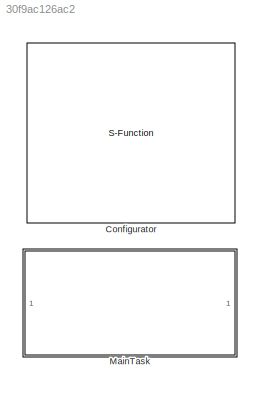
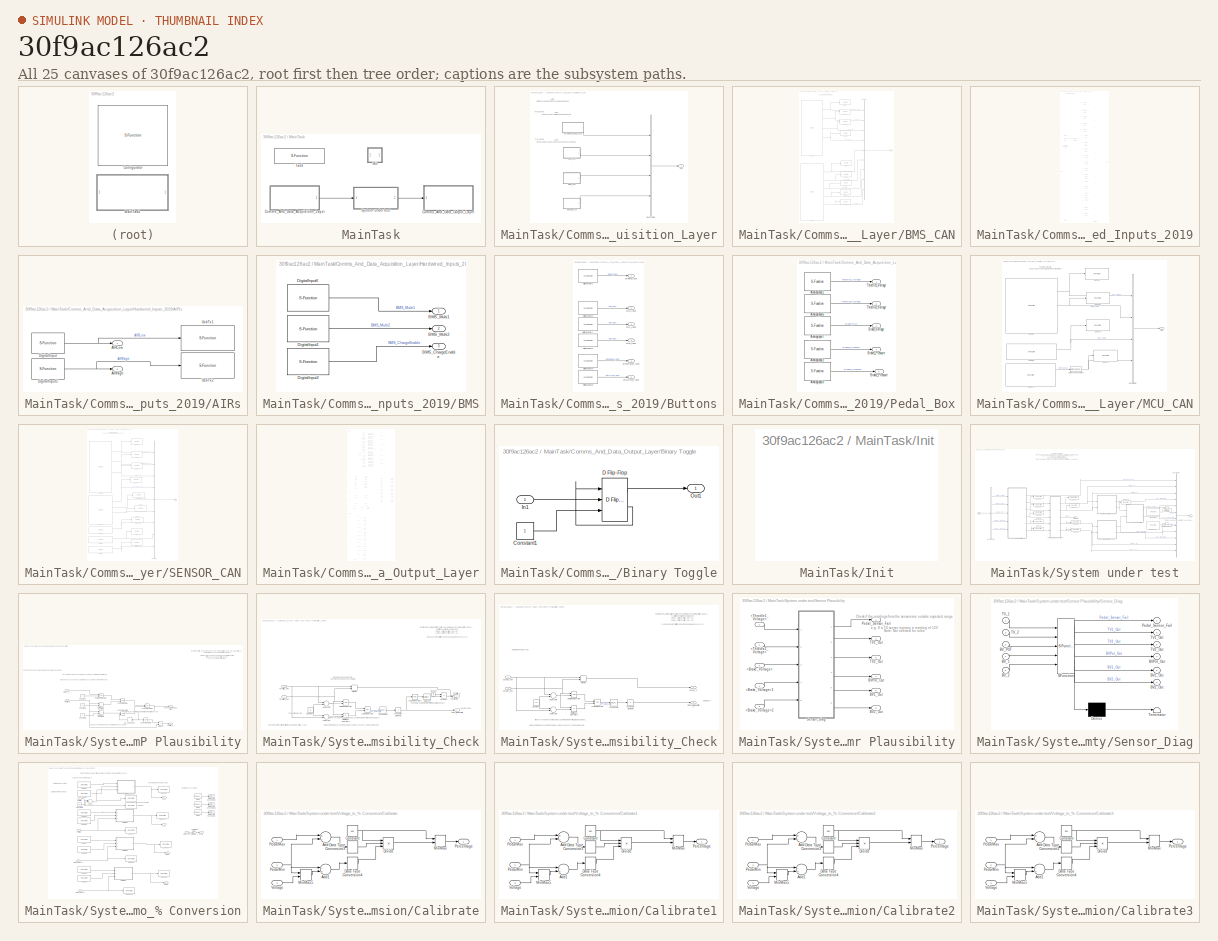
[diagram: thumbnail index - all 25 canvases of the model, root first then tree order]
MODEL slx_30f9ac126ac2
KIND model
CONFIG AbsTol = auto
CONFIG EnableMultiTasking = off
CONFIG FixedStep = 0.0001
CONFIG MaxStep = auto
CONFIG MinStep = auto
CONFIG PostLoadFcn = model_init();
CONFIG RelTol = 1e-3
CONFIG SampleTimeConstraint = Unconstrained
CONFIG Solver = FixedStepDiscrete
CONFIG SolverName = FixedStepDiscrete
CONFIG StartTime = 0.0
CONFIG StopTime = inf
BLOCK [S-Function] Configurator
  EnableBusSupport = off
  FunctionName = NsiSys_Configurator
  OpenFcn = NsiSys_Configurator_OpenFcn();
  Parameters = main,io,nbof_can,can,ccp,flash,nbof_lin,lin,tasks
  Ports = []
  SFcnIsStateOwnerBlock = off
  SFunctionDeploymentMode = off
BLOCK [SubSystem] MainTask
  OpenFcn = NsiSys_SubSystemTask_OpenFcn();
  Ports = []
  RTWFcnName = MainTask
  RTWFcnNameOpts = User specified
  RTWFileName = FileTaskFcn
  RTWFileNameOpts = Use function name
  RTWSystemCode = Nonreusable function
  RequestExecContextInheritance = off
  SystemSampleTime = [0.01]
  TreatAsAtomicUnit = on
  Variant = off
BLOCK [SubSystem] MainTask/Comms_And_Data_Acquisition_Layer
  Ports = [0, 1]
  RequestExecContextInheritance = off
  Variant = off
BLOCK [SubSystem] MainTask/Comms_And_Data_Acquisition_Layer/BMS_CAN
  Ports = [0, 1]
  RequestExecContextInheritance = off
  Variant = off
BLOCK [BusCreator] MainTask/Comms_And_Data_Acquisition_Layer/BMS_CAN/Bus Creator
  DisplayOption = bar
  InheritFromInputs = on
  Inputs = 9
  Ports = [9, 1]
BLOCK [S-Function] MainTask/Comms_And_Data_Acquisition_Layer/BMS_CAN/CanRx6
  EnableBusSupport = off
  FunctionName = NsiCan_Rx_Ext
  OpenFcn = NsiCan_Rx_Ext_OpenFcn();
  Parameters = data_can,channel,msg_name,ident,ident_type,dlc,signals,is_trigger,is_physical,is_canfd,is_rxgw
  Ports = [0, 5]
  SFcnIsStateOwnerBlock = off
  SFunctionDeploymentMode = off
BLOCK [S-Function] MainTask/Comms_And_Data_Acquisition_Layer/BMS_CAN/CanRx7
  EnableBusSupport = off
  FunctionName = NsiCan_Rx_Ext
  OpenFcn = NsiCan_Rx_Ext_OpenFcn();
  Parameters = data_can,channel,msg_name,ident,ident_type,dlc,signals,is_trigger,is_physical,is_canfd,is_rxgw
  Ports = [0, 6]
  SFcnIsStateOwnerBlock = off
  SFunctionDeploymentMode = off
BLOCK [Outport] MainTask/Comms_And_Data_Acquisition_Layer/BMS_CAN/Out1
  IconDisplay = Port number
BLOCK [S-Function] MainTask/Comms_And_Data_Acquisition_Layer/BMS_CAN/UsbTx1
  EnableBusSupport = off
  FunctionName = NsiUsb_Tx
  OpenFcn = NsiUsb_Tx_OpenFcn();
  Parameters = signame,resolution,offset,unite
  Ports = [1]
  SFcnIsStateOwnerBlock = off
  SFunctionDeploymentMode = off
BLOCK [S-Function] MainTask/Comms_And_Data_Acquisition_Layer/BMS_CAN/UsbTx2
  EnableBusSupport = off
  FunctionName = NsiUsb_Tx
  OpenFcn = NsiUsb_Tx_OpenFcn();
  Parameters = signame,resolution,offset,unite
  Ports = [1]
  SFcnIsStateOwnerBlock = off
  SFunctionDeploymentMode = off
BLOCK [S-Function] MainTask/Comms_And_Data_Acquisition_Layer/BMS_CAN/UsbTx3
  EnableBusSupport = off
  FunctionName = NsiUsb_Tx
  OpenFcn = NsiUsb_Tx_OpenFcn();
  Parameters = signame,resolution,offset,unite
  Ports = [1]
  SFcnIsStateOwnerBlock = off
  SFunctionDeploymentMode = off
BLOCK [S-Function] MainTask/Comms_And_Data_Acquisition_Layer/BMS_CAN/UsbTx4
  EnableBusSupport = off
  FunctionName = NsiUsb_Tx
  OpenFcn = NsiUsb_Tx_OpenFcn();
  Parameters = signame,resolution,offset,unite
  Ports = [1]
  SFcnIsStateOwnerBlock = off
  SFunctionDeploymentMode = off
BLOCK [S-Function] MainTask/Comms_And_Data_Acquisition_Layer/BMS_CAN/UsbTx5
  EnableBusSupport = off
  FunctionName = NsiUsb_Tx
  OpenFcn = NsiUsb_Tx_OpenFcn();
  Parameters = signame,resolution,offset,unite
  Ports = [1]
  SFcnIsStateOwnerBlock = off
  SFunctionDeploymentMode = off
BLOCK [S-Function] MainTask/Comms_And_Data_Acquisition_Layer/BMS_CAN/UsbTx6
  EnableBusSupport = off
  FunctionName = NsiUsb_Tx
  OpenFcn = NsiUsb_Tx_OpenFcn();
  Parameters = signame,resolution,offset,unite
  Ports = [1]
  SFcnIsStateOwnerBlock = off
  SFunctionDeploymentMode = off
BLOCK [S-Function] MainTask/Comms_And_Data_Acquisition_Layer/BMS_CAN/UsbTx7
  EnableBusSupport = off
  FunctionName = NsiUsb_Tx
  OpenFcn = NsiUsb_Tx_OpenFcn();
  Parameters = signame,resolution,offset,unite
  Ports = [1]
  SFcnIsStateOwnerBlock = off
  SFunctionDeploymentMode = off
BLOCK [S-Function] MainTask/Comms_And_Data_Acquisition_Layer/BMS_CAN/UsbTx8
  EnableBusSupport = off
  FunctionName = NsiUsb_Tx
  OpenFcn = NsiUsb_Tx_OpenFcn();
  Parameters = signame,resolution,offset,unite
  Ports = [1]
  SFcnIsStateOwnerBlock = off
  SFunctionDeploymentMode = off
BLOCK [S-Function] MainTask/Comms_And_Data_Acquisition_Layer/BMS_CAN/UsbTx9
  EnableBusSupport = off
  FunctionName = NsiUsb_Tx
  OpenFcn = NsiUsb_Tx_OpenFcn();
  Parameters = signame,resolution,offset,unite
  Ports = [1]
  SFcnIsStateOwnerBlock = off
  SFunctionDeploymentMode = off
BLOCK [BusCreator] MainTask/Comms_And_Data_Acquisition_Layer/Bus Creator
  DisplayOption = bar
  InheritFromInputs = on
  Inputs = 4
  Ports = [4, 1]
BLOCK [SubSystem] MainTask/Comms_And_Data_Acquisition_Layer/Hardwired_Inputs_2019
  Ports = [0, 1]
  RequestExecContextInheritance = off
  Variant = off
BLOCK [SubSystem] MainTask/Comms_And_Data_Acquisition_Layer/Hardwired_Inputs_2019/AIRs
  Ports = [0, 2]
  RequestExecContextInheritance = off
  Variant = off
BLOCK [Outport] MainTask/Comms_And_Data_Acquisition_Layer/Hardwired_Inputs_2019/AIRs/AIRHigh
  IconDisplay = Port number
  Port = 2
BLOCK [Outport] MainTask/Comms_And_Data_Acquisition_Layer/Hardwired_Inputs_2019/AIRs/AIRLow
  IconDisplay = Port number
BLOCK [S-Function] MainTask/Comms_And_Data_Acquisition_Layer/Hardwired_Inputs_2019/AIRs/DigitalInput
  EnableBusSupport = off
  FunctionName = NsiIo_DigitalInput
  OpenFcn = NsiIo_DigitalInput_OpenFcn();
  Parameters = channel,is_trigger,typeof_trigger,is_wakeup,wakeup_level
  Ports = [0, 1]
  SFcnIsStateOwnerBlock = off
  SFunctionDeploymentMode = off
BLOCK [S-Function] MainTask/Comms_And_Data_Acquisition_Layer/Hardwired_Inputs_2019/AIRs/DigitalInput5
  EnableBusSupport = off
  FunctionName = NsiIo_DigitalInput
  OpenFcn = NsiIo_DigitalInput_OpenFcn();
  Parameters = channel,is_trigger,typeof_trigger,is_wakeup,wakeup_level
  Ports = [0, 1]
  SFcnIsStateOwnerBlock = off
  SFunctionDeploymentMode = off
BLOCK [S-Function] MainTask/Comms_And_Data_Acquisition_Layer/Hardwired_Inputs_2019/AIRs/UsbTx1
  EnableBusSupport = off
  FunctionName = NsiUsb_Tx
  OpenFcn = NsiUsb_Tx_OpenFcn();
  Parameters = signame,resolution,offset,unite
  Ports = [1]
  SFcnIsStateOwnerBlock = off
  SFunctionDeploymentMode = off
BLOCK [S-Function] MainTask/Comms_And_Data_Acquisition_Layer/Hardwired_Inputs_2019/AIRs/UsbTx2
  EnableBusSupport = off
  FunctionName = NsiUsb_Tx
  OpenFcn = NsiUsb_Tx_OpenFcn();
  Parameters = signame,resolution,offset,unite
  Ports = [1]
  SFcnIsStateOwnerBlock = off
  SFunctionDeploymentMode = off
BLOCK [SubSystem] MainTask/Comms_And_Data_Acquisition_Layer/Hardwired_Inputs_2019/BMS
  Ports = [0, 3]
  RequestExecContextInheritance = off
  Variant = off
BLOCK [Outport] MainTask/Comms_And_Data_Acquisition_Layer/Hardwired_Inputs_2019/BMS/BMS_ChargeEnable
  IconDisplay = Port number
  Port = 3
BLOCK [Outport] MainTask/Comms_And_Data_Acquisition_Layer/Hardwired_Inputs_2019/BMS/BMS_Multi1
  IconDisplay = Port number
BLOCK [Outport] MainTask/Comms_And_Data_Acquisition_Layer/Hardwired_Inputs_2019/BMS/BMS_Multi2
  IconDisplay = Port number
  Port = 2
BLOCK [S-Function] MainTask/Comms_And_Data_Acquisition_Layer/Hardwired_Inputs_2019/BMS/DigitalInput1
  EnableBusSupport = off
  FunctionName = NsiIo_DigitalInput
  OpenFcn = NsiIo_DigitalInput_OpenFcn();
  Parameters = channel,is_trigger,typeof_trigger,is_wakeup,wakeup_level
  Ports = [0, 1]
  SFcnIsStateOwnerBlock = off
  SFunctionDeploymentMode = off
BLOCK [S-Function] MainTask/Comms_And_Data_Acquisition_Layer/Hardwired_Inputs_2019/BMS/DigitalInput2
  EnableBusSupport = off
  FunctionName = NsiIo_DigitalInput
  OpenFcn = NsiIo_DigitalInput_OpenFcn();
  Parameters = channel,is_trigger,typeof_trigger,is_wakeup,wakeup_level
  Ports = [0, 1]
  SFcnIsStateOwnerBlock = off
  SFunctionDeploymentMode = off
BLOCK [S-Function] MainTask/Comms_And_Data_Acquisition_Layer/Hardwired_Inputs_2019/BMS/DigitalInput6
  EnableBusSupport = off
  FunctionName = NsiIo_DigitalInput
  OpenFcn = NsiIo_DigitalInput_OpenFcn();
  Parameters = channel,is_trigger,typeof_trigger,is_wakeup,wakeup_level
  Ports = [0, 1]
  SFcnIsStateOwnerBlock = off
  SFunctionDeploymentMode = off
BLOCK [BusCreator] MainTask/Comms_And_Data_Acquisition_Layer/Hardwired_Inputs_2019/Bus Creator
  DisplayOption = bar
  InheritFromInputs = on
  Inputs = 18
  Ports = [18, 1]
BLOCK [SubSystem] MainTask/Comms_And_Data_Acquisition_Layer/Hardwired_Inputs_2019/Buttons
  Ports = [0, 6]
  RequestExecContextInheritance = off
  Variant = off
BLOCK [S-Function] MainTask/Comms_And_Data_Acquisition_Layer/Hardwired_Inputs_2019/Buttons/DigitalInput1
  EnableBusSupport = off
  FunctionName = NsiIo_DigitalInput
  OpenFcn = NsiIo_DigitalInput_OpenFcn();
  Parameters = channel,is_trigger,typeof_trigger,is_wakeup,wakeup_level
  Ports = [0, 1]
  SFcnIsStateOwnerBlock = off
  SFunctionDeploymentMode = off
BLOCK [S-Function] MainTask/Comms_And_Data_Acquisition_Layer/Hardwired_Inputs_2019/Buttons/DigitalInput2
  EnableBusSupport = off
  FunctionName = NsiIo_DigitalInput
  OpenFcn = NsiIo_DigitalInput_OpenFcn();
  Parameters = channel,is_trigger,typeof_trigger,is_wakeup,wakeup_level
  Ports = [0, 1]
  SFcnIsStateOwnerBlock = off
  SFunctionDeploymentMode = off
BLOCK [S-Function] MainTask/Comms_And_Data_Acquisition_Layer/Hardwired_Inputs_2019/Buttons/DigitalInput3
  EnableBusSupport = off
  FunctionName = NsiIo_DigitalInput
  OpenFcn = NsiIo_DigitalInput_OpenFcn();
  Parameters = channel,is_trigger,typeof_trigger,is_wakeup,wakeup_level
  Ports = [0, 1]
  SFcnIsStateOwnerBlock = off
  SFunctionDeploymentMode = off
BLOCK [S-Function] MainTask/Comms_And_Data_Acquisition_Layer/Hardwired_Inputs_2019/Buttons/DigitalInput4
  EnableBusSupport = off
  FunctionName = NsiIo_DigitalInput
  OpenFcn = NsiIo_DigitalInput_OpenFcn();
  Parameters = channel,is_trigger,typeof_trigger,is_wakeup,wakeup_level
  Ports = [0, 1]
  SFcnIsStateOwnerBlock = off
  SFunctionDeploymentMode = off
BLOCK [S-Function] MainTask/Comms_And_Data_Acquisition_Layer/Hardwired_Inputs_2019/Buttons/DigitalInput5
  EnableBusSupport = off
  FunctionName = NsiIo_DigitalInput
  OpenFcn = NsiIo_DigitalInput_OpenFcn();
  Parameters = channel,is_trigger,typeof_trigger,is_wakeup,wakeup_level
  Ports = [0, 1]
  SFcnIsStateOwnerBlock = off
  SFunctionDeploymentMode = off
BLOCK [S-Function] MainTask/Comms_And_Data_Acquisition_Layer/Hardwired_Inputs_2019/Buttons/DigitalInput6
  EnableBusSupport = off
  FunctionName = NsiIo_DigitalInput
  OpenFcn = NsiIo_DigitalInput_OpenFcn();
  Parameters = channel,is_trigger,typeof_trigger,is_wakeup,wakeup_level
  Ports = [0, 1]
  SFcnIsStateOwnerBlock = off
  SFunctionDeploymentMode = off
BLOCK [Outport] MainTask/Comms_And_Data_Acquisition_Layer/Hardwired_Inputs_2019/Buttons/btnAccyFan_Input
  IconDisplay = Port number
  Port = 6
BLOCK [Outport] MainTask/Comms_And_Data_Acquisition_Layer/Hardwired_Inputs_2019/Buttons/btnPumpFan_Input
  IconDisplay = Port number
  Port = 5
BLOCK [Outport] MainTask/Comms_And_Data_Acquisition_Layer/Hardwired_Inputs_2019/Buttons/btnRTD_Input
  IconDisplay = Port number
BLOCK [Outport] MainTask/Comms_And_Data_Acquisition_Layer/Hardwired_Inputs_2019/Buttons/btnX_Input
  IconDisplay = Port number
  Port = 2
BLOCK [Outport] MainTask/Comms_And_Data_Acquisition_Layer/Hardwired_Inputs_2019/Buttons/btnY_Input
  IconDisplay = Port number
  Port = 3
BLOCK [Outport] MainTask/Comms_And_Data_Acquisition_Layer/Hardwired_Inputs_2019/Buttons/btnZ_Input
  IconDisplay = Port number
  Port = 4
BLOCK [S-Function] MainTask/Comms_And_Data_Acquisition_Layer/Hardwired_Inputs_2019/FrequentialInput1
  EnableBusSupport = off
  FunctionName = NsiIo_FrequencyInput
  OpenFcn = NsiIo_FrequencyInput_OpenFcn();
  Parameters = channel,max_freq,is_digital_input,DutyCycle,MUXlabType
  Ports = [0, 1]
  SFcnIsStateOwnerBlock = off
  SFunctionDeploymentMode = off
BLOCK [Outport] MainTask/Comms_And_Data_Acquisition_Layer/Hardwired_Inputs_2019/Out1
  IconDisplay = Port number
BLOCK [SubSystem] MainTask/Comms_And_Data_Acquisition_Layer/Hardwired_Inputs_2019/Pedal_Box
  Ports = [0, 5]
  RequestExecContextInheritance = off
  Variant = off
BLOCK [S-Function] MainTask/Comms_And_Data_Acquisition_Layer/Hardwired_Inputs_2019/Pedal_Box/AnalogInput1
  EnableBusSupport = off
  FunctionName = NsiIo_AnalogInput
  OpenFcn = NsiIo_AnalogInput_OpenFcn();
  Parameters = channel
  Ports = [0, 1]
  SFcnIsStateOwnerBlock = off
  SFunctionDeploymentMode = off
BLOCK [S-Function] MainTask/Comms_And_Data_Acquisition_Layer/Hardwired_Inputs_2019/Pedal_Box/AnalogInput2
  EnableBusSupport = off
  FunctionName = NsiIo_AnalogInput
  OpenFcn = NsiIo_AnalogInput_OpenFcn();
  Parameters = channel
  Ports = [0, 1]
  SFcnIsStateOwnerBlock = off
  SFunctionDeploymentMode = off
BLOCK [S-Function] MainTask/Comms_And_Data_Acquisition_Layer/Hardwired_Inputs_2019/Pedal_Box/AnalogInput3
  EnableBusSupport = off
  FunctionName = NsiIo_AnalogInput
  OpenFcn = NsiIo_AnalogInput_OpenFcn();
  Parameters = channel
  Ports = [0, 1]
  SFcnIsStateOwnerBlock = off
  SFunctionDeploymentMode = off
BLOCK [S-Function] MainTask/Comms_And_Data_Acquisition_Layer/Hardwired_Inputs_2019/Pedal_Box/AnalogInput6
  EnableBusSupport = off
  FunctionName = NsiIo_AnalogInput
  OpenFcn = NsiIo_AnalogInput_OpenFcn();
  Parameters = channel
  Ports = [0, 1]
  SFcnIsStateOwnerBlock = off
  SFunctionDeploymentMode = off
BLOCK [S-Function] MainTask/Comms_And_Data_Acquisition_Layer/Hardwired_Inputs_2019/Pedal_Box/AnalogInput7
  EnableBusSupport = off
  FunctionName = NsiIo_AnalogInput
  OpenFcn = NsiIo_AnalogInput_OpenFcn();
  Parameters = channel
  Ports = [0, 1]
  SFcnIsStateOwnerBlock = off
  SFunctionDeploymentMode = off
BLOCK [Outport] MainTask/Comms_And_Data_Acquisition_Layer/Hardwired_Inputs_2019/Pedal_Box/Brake1_Pressure
  IconDisplay = Port number
  Port = 4
BLOCK [Outport] MainTask/Comms_And_Data_Acquisition_Layer/Hardwired_Inputs_2019/Pedal_Box/Brake2_Pressure
  IconDisplay = Port number
  Port = 5
BLOCK [Outport] MainTask/Comms_And_Data_Acquisition_Layer/Hardwired_Inputs_2019/Pedal_Box/Brake_Voltage
  IconDisplay = Port number
  Port = 3
BLOCK [Outport] MainTask/Comms_And_Data_Acquisition_Layer/Hardwired_Inputs_2019/Pedal_Box/Throttle1_Voltage
  IconDisplay = Port number
BLOCK [Outport] MainTask/Comms_And_Data_Acquisition_Layer/Hardwired_Inputs_2019/Pedal_Box/Throttle2_Voltage
  IconDisplay = Port number
  Port = 2
BLOCK [S-Function] MainTask/Comms_And_Data_Acquisition_Layer/Hardwired_Inputs_2019/UsbTx1
  EnableBusSupport = off
  FunctionName = NsiUsb_Tx
  OpenFcn = NsiUsb_Tx_OpenFcn();
  Parameters = signame,resolution,offset,unite
  Ports = [1]
  SFcnIsStateOwnerBlock = off
  SFunctionDeploymentMode = off
BLOCK [S-Function] MainTask/Comms_And_Data_Acquisition_Layer/Hardwired_Inputs_2019/UsbTx10
  EnableBusSupport = off
  FunctionName = NsiUsb_Tx
  OpenFcn = NsiUsb_Tx_OpenFcn();
  Parameters = signame,resolution,offset,unite
  Ports = [1]
  SFcnIsStateOwnerBlock = off
  SFunctionDeploymentMode = off
BLOCK [S-Function] MainTask/Comms_And_Data_Acquisition_Layer/Hardwired_Inputs_2019/UsbTx11
  EnableBusSupport = off
  FunctionName = NsiUsb_Tx
  OpenFcn = NsiUsb_Tx_OpenFcn();
  Parameters = signame,resolution,offset,unite
  Ports = [1]
  SFcnIsStateOwnerBlock = off
  SFunctionDeploymentMode = off
BLOCK [S-Function] MainTask/Comms_And_Data_Acquisition_Layer/Hardwired_Inputs_2019/UsbTx12
  EnableBusSupport = off
  FunctionName = NsiUsb_Tx
  OpenFcn = NsiUsb_Tx_OpenFcn();
  Parameters = signame,resolution,offset,unite
  Ports = [1]
  SFcnIsStateOwnerBlock = off
  SFunctionDeploymentMode = off
BLOCK [S-Function] MainTask/Comms_And_Data_Acquisition_Layer/Hardwired_Inputs_2019/UsbTx13
  EnableBusSupport = off
  FunctionName = NsiUsb_Tx
  OpenFcn = NsiUsb_Tx_OpenFcn();
  Parameters = signame,resolution,offset,unite
  Ports = [1]
  SFcnIsStateOwnerBlock = off
  SFunctionDeploymentMode = off
BLOCK [S-Function] MainTask/Comms_And_Data_Acquisition_Layer/Hardwired_Inputs_2019/UsbTx14
  EnableBusSupport = off
  FunctionName = NsiUsb_Tx
  OpenFcn = NsiUsb_Tx_OpenFcn();
  Parameters = signame,resolution,offset,unite
  Ports = [1]
  SFcnIsStateOwnerBlock = off
  SFunctionDeploymentMode = off
BLOCK [S-Function] MainTask/Comms_And_Data_Acquisition_Layer/Hardwired_Inputs_2019/UsbTx15
  EnableBusSupport = off
  FunctionName = NsiUsb_Tx
  OpenFcn = NsiUsb_Tx_OpenFcn();
  Parameters = signame,resolution,offset,unite
  Ports = [1]
  SFcnIsStateOwnerBlock = off
  SFunctionDeploymentMode = off
BLOCK [S-Function] MainTask/Comms_And_Data_Acquisition_Layer/Hardwired_Inputs_2019/UsbTx16
  EnableBusSupport = off
  FunctionName = NsiUsb_Tx
  OpenFcn = NsiUsb_Tx_OpenFcn();
  Parameters = signame,resolution,offset,unite
  Ports = [1]
  SFcnIsStateOwnerBlock = off
  SFunctionDeploymentMode = off
BLOCK [S-Function] MainTask/Comms_And_Data_Acquisition_Layer/Hardwired_Inputs_2019/UsbTx17
  EnableBusSupport = off
  FunctionName = NsiUsb_Tx
  OpenFcn = NsiUsb_Tx_OpenFcn();
  Parameters = signame,resolution,offset,unite
  Ports = [1]
  SFcnIsStateOwnerBlock = off
  SFunctionDeploymentMode = off
BLOCK [S-Function] MainTask/Comms_And_Data_Acquisition_Layer/Hardwired_Inputs_2019/UsbTx18
  EnableBusSupport = off
  FunctionName = NsiUsb_Tx
  OpenFcn = NsiUsb_Tx_OpenFcn();
  Parameters = signame,resolution,offset,unite
  Ports = [1]
  SFcnIsStateOwnerBlock = off
  SFunctionDeploymentMode = off
BLOCK [S-Function] MainTask/Comms_And_Data_Acquisition_Layer/Hardwired_Inputs_2019/UsbTx2
  EnableBusSupport = off
  FunctionName = NsiUsb_Tx
  OpenFcn = NsiUsb_Tx_OpenFcn();
  Parameters = signame,resolution,offset,unite
  Ports = [1]
  SFcnIsStateOwnerBlock = off
  SFunctionDeploymentMode = off
BLOCK [S-Function] MainTask/Comms_And_Data_Acquisition_Layer/Hardwired_Inputs_2019/UsbTx3
  EnableBusSupport = off
  FunctionName = NsiUsb_Tx
  OpenFcn = NsiUsb_Tx_OpenFcn();
  Parameters = signame,resolution,offset,unite
  Ports = [1]
  SFcnIsStateOwnerBlock = off
  SFunctionDeploymentMode = off
BLOCK [S-Function] MainTask/Comms_And_Data_Acquisition_Layer/Hardwired_Inputs_2019/UsbTx4
  EnableBusSupport = off
  FunctionName = NsiUsb_Tx
  OpenFcn = NsiUsb_Tx_OpenFcn();
  Parameters = signame,resolution,offset,unite
  Ports = [1]
  SFcnIsStateOwnerBlock = off
  SFunctionDeploymentMode = off
BLOCK [S-Function] MainTask/Comms_And_Data_Acquisition_Layer/Hardwired_Inputs_2019/UsbTx5
  EnableBusSupport = off
  FunctionName = NsiUsb_Tx
  OpenFcn = NsiUsb_Tx_OpenFcn();
  Parameters = signame,resolution,offset,unite
  Ports = [1]
  SFcnIsStateOwnerBlock = off
  SFunctionDeploymentMode = off
BLOCK [S-Function] MainTask/Comms_And_Data_Acquisition_Layer/Hardwired_Inputs_2019/UsbTx6
  EnableBusSupport = off
  FunctionName = NsiUsb_Tx
  OpenFcn = NsiUsb_Tx_OpenFcn();
  Parameters = signame,resolution,offset,unite
  Ports = [1]
  SFcnIsStateOwnerBlock = off
  SFunctionDeploymentMode = off
BLOCK [S-Function] MainTask/Comms_And_Data_Acquisition_Layer/Hardwired_Inputs_2019/UsbTx7
  EnableBusSupport = off
  FunctionName = NsiUsb_Tx
  OpenFcn = NsiUsb_Tx_OpenFcn();
  Parameters = signame,resolution,offset,unite
  Ports = [1]
  SFcnIsStateOwnerBlock = off
  SFunctionDeploymentMode = off
BLOCK [S-Function] MainTask/Comms_And_Data_Acquisition_Layer/Hardwired_Inputs_2019/UsbTx8
  EnableBusSupport = off
  FunctionName = NsiUsb_Tx
  OpenFcn = NsiUsb_Tx_OpenFcn();
  Parameters = signame,resolution,offset,unite
  Ports = [1]
  SFcnIsStateOwnerBlock = off
  SFunctionDeploymentMode = off
BLOCK [S-Function] MainTask/Comms_And_Data_Acquisition_Layer/Hardwired_Inputs_2019/UsbTx9
  EnableBusSupport = off
  FunctionName = NsiUsb_Tx
  OpenFcn = NsiUsb_Tx_OpenFcn();
  Parameters = signame,resolution,offset,unite
  Ports = [1]
  SFcnIsStateOwnerBlock = off
  SFunctionDeploymentMode = off
BLOCK [S-Function] MainTask/Comms_And_Data_Acquisition_Layer/Hardwired_Inputs_2019/VBat
  EnableBusSupport = off
  FunctionName = NsiIo_Vbat
  OpenFcn = NsiIo_Vbat_OpenFcn();
  Ports = [0, 1]
  SFcnIsStateOwnerBlock = off
  SFunctionDeploymentMode = off
BLOCK [Lookup_n-D] MainTask/Comms_And_Data_Acquisition_Layer/Hardwired_Inputs_2019/Voltage_Act
  BreakpointsForDimension1 = [0,20000]
  ExtrapMethod = Clip
  InternalRulePriority = Speed
  NumberOfTableDimensions = 1
  OutDataTypeStr = uint16
  Ports = [1, 1]
  RndMeth = Simplest
  Table = [500,33000]
  TableDataTypeStr = Inherit: Inherit from 'Table data'
  UseLastTableValue = on
BLOCK [SubSystem] MainTask/Comms_And_Data_Acquisition_Layer/MCU_CAN
  Ports = [0, 1]
  RequestExecContextInheritance = off
  Variant = off
BLOCK [BusCreator] MainTask/Comms_And_Data_Acquisition_Layer/MCU_CAN/Bus Creator
  DisplayOption = bar
  InheritFromInputs = on
  Inputs = 4
  Ports = [4, 1]
BLOCK [S-Function] MainTask/Comms_And_Data_Acquisition_Layer/MCU_CAN/CanRx1
  EnableBusSupport = off
  FunctionName = NsiCan_Rx_J1939_Ext
  OpenFcn = NsiCan_Rx_J1939_Ext_OpenFcn();
  Parameters = data_can,channel,msg_name,ident,ident_type,dlc,signals,is_trigger,is_SA_Masked,is_TA_Masked,is_physical,is_canfd
  Ports = [0, 3]
  SFcnIsStateOwnerBlock = off
  SFunctionDeploymentMode = off
BLOCK [S-Function] MainTask/Comms_And_Data_Acquisition_Layer/MCU_CAN/CanRx2
  EnableBusSupport = off
  FunctionName = NsiCan_Rx_J1939_Ext
  OpenFcn = NsiCan_Rx_J1939_Ext_OpenFcn();
  Parameters = data_can,channel,msg_name,ident,ident_type,dlc,signals,is_trigger,is_SA_Masked,is_TA_Masked,is_physical,is_canfd
  Ports = [0, 2]
  SFcnIsStateOwnerBlock = off
  SFunctionDeploymentMode = off
BLOCK [S-Function] MainTask/Comms_And_Data_Acquisition_Layer/MCU_CAN/CanRx3
  EnableBusSupport = off
  FunctionName = NsiCan_Rx_J1939_Ext
  OpenFcn = NsiCan_Rx_J1939_Ext_OpenFcn();
  Parameters = data_can,channel,msg_name,ident,ident_type,dlc,signals,is_trigger,is_SA_Masked,is_TA_Masked,is_physical,is_canfd
  Ports = [0, 2]
  SFcnIsStateOwnerBlock = off
  SFunctionDeploymentMode = off
BLOCK [DataTypeConversion] MainTask/Comms_And_Data_Acquisition_Layer/MCU_CAN/Data Type Conversion
  OutDataTypeStr = int16
  RndMeth = Floor
  SaturateOnIntegerOverflow = off
BLOCK [Outport] MainTask/Comms_And_Data_Acquisition_Layer/MCU_CAN/Out1
  IconDisplay = Port number
BLOCK [S-Function] MainTask/Comms_And_Data_Acquisition_Layer/MCU_CAN/UsbTx1
  EnableBusSupport = off
  FunctionName = NsiUsb_Tx
  OpenFcn = NsiUsb_Tx_OpenFcn();
  Parameters = signame,resolution,offset,unite
  Ports = [1]
  SFcnIsStateOwnerBlock = off
  SFunctionDeploymentMode = off
BLOCK [S-Function] MainTask/Comms_And_Data_Acquisition_Layer/MCU_CAN/UsbTx2
  EnableBusSupport = off
  FunctionName = NsiUsb_Tx
  OpenFcn = NsiUsb_Tx_OpenFcn();
  Parameters = signame,resolution,offset,unite
  Ports = [1]
  SFcnIsStateOwnerBlock = off
  SFunctionDeploymentMode = off
BLOCK [S-Function] MainTask/Comms_And_Data_Acquisition_Layer/MCU_CAN/UsbTx3
  EnableBusSupport = off
  FunctionName = NsiUsb_Tx
  OpenFcn = NsiUsb_Tx_OpenFcn();
  Parameters = signame,resolution,offset,unite
  Ports = [1]
  SFcnIsStateOwnerBlock = off
  SFunctionDeploymentMode = off
BLOCK [S-Function] MainTask/Comms_And_Data_Acquisition_Layer/MCU_CAN/UsbTx4
  EnableBusSupport = off
  FunctionName = NsiUsb_Tx
  OpenFcn = NsiUsb_Tx_OpenFcn();
  Parameters = signame,resolution,offset,unite
  Ports = [1]
  SFcnIsStateOwnerBlock = off
  SFunctionDeploymentMode = off
BLOCK [Outport] MainTask/Comms_And_Data_Acquisition_Layer/Out1
  IconDisplay = Port number
BLOCK [SubSystem] MainTask/Comms_And_Data_Acquisition_Layer/SENSOR_CAN
  Ports = [0, 1]
  RequestExecContextInheritance = off
  Variant = off
BLOCK [BusCreator] MainTask/Comms_And_Data_Acquisition_Layer/SENSOR_CAN/Bus Creator
  DisplayOption = bar
  InheritFromInputs = on
  Inputs = 9
  Ports = [9, 1]
BLOCK [S-Function] MainTask/Comms_And_Data_Acquisition_Layer/SENSOR_CAN/CanRx1
  EnableBusSupport = off
  FunctionName = NsiCan_Rx_Ext
  OpenFcn = NsiCan_Rx_Ext_OpenFcn();
  Parameters = data_can,channel,msg_name,ident,ident_type,dlc,signals,is_trigger,is_physical,is_canfd,is_rxgw
  Ports = [0, 4]
  SFcnIsStateOwnerBlock = off
  SFunctionDeploymentMode = off
BLOCK [S-Function] MainTask/Comms_And_Data_Acquisition_Layer/SENSOR_CAN/CanRx2
  EnableBusSupport = off
  FunctionName = NsiCan_Rx_Ext
  OpenFcn = NsiCan_Rx_Ext_OpenFcn();
  Parameters = data_can,channel,msg_name,ident,ident_type,dlc,signals,is_trigger,is_physical,is_canfd,is_rxgw
  Ports = [0, 4]
  SFcnIsStateOwnerBlock = off
  SFunctionDeploymentMode = off
BLOCK [S-Function] MainTask/Comms_And_Data_Acquisition_Layer/SENSOR_CAN/CanRx5
  EnableBusSupport = off
  FunctionName = NsiCan_Rx_Ext
  OpenFcn = NsiCan_Rx_Ext_OpenFcn();
  Parameters = data_can,channel,msg_name,ident,ident_type,dlc,signals,is_trigger,is_physical,is_canfd,is_rxgw
  Ports = [0, 2]
  SFcnIsStateOwnerBlock = off
  SFunctionDeploymentMode = off
BLOCK [S-Function] MainTask/Comms_And_Data_Acquisition_Layer/SENSOR_CAN/CanRx8
  EnableBusSupport = off
  FunctionName = NsiCan_Rx_Ext
  OpenFcn = NsiCan_Rx_Ext_OpenFcn();
  Parameters = data_can,channel,msg_name,ident,ident_type,dlc,signals,is_trigger,is_physical,is_canfd,is_rxgw
  Ports = [0, 2]
  SFcnIsStateOwnerBlock = off
  SFunctionDeploymentMode = off
BLOCK [S-Function] MainTask/Comms_And_Data_Acquisition_Layer/SENSOR_CAN/CanRx9
  EnableBusSupport = off
  FunctionName = NsiCan_Rx_Ext
  OpenFcn = NsiCan_Rx_Ext_OpenFcn();
  Parameters = data_can,channel,msg_name,ident,ident_type,dlc,signals,is_trigger,is_physical,is_canfd,is_rxgw
  Ports = [0, 2]
  SFcnIsStateOwnerBlock = off
  SFunctionDeploymentMode = off
BLOCK [Outport] MainTask/Comms_And_Data_Acquisition_Layer/SENSOR_CAN/Out1
  IconDisplay = Port number
BLOCK [S-Function] MainTask/Comms_And_Data_Acquisition_Layer/SENSOR_CAN/UsbTx1
  EnableBusSupport = off
  FunctionName = NsiUsb_Tx
  OpenFcn = NsiUsb_Tx_OpenFcn();
  Parameters = signame,resolution,offset,unite
  Ports = [1]
  SFcnIsStateOwnerBlock = off
  SFunctionDeploymentMode = off
BLOCK [S-Function] MainTask/Comms_And_Data_Acquisition_Layer/SENSOR_CAN/UsbTx2
  EnableBusSupport = off
  FunctionName = NsiUsb_Tx
  OpenFcn = NsiUsb_Tx_OpenFcn();
  Parameters = signame,resolution,offset,unite
  Ports = [1]
  SFcnIsStateOwnerBlock = off
  SFunctionDeploymentMode = off
BLOCK [S-Function] MainTask/Comms_And_Data_Acquisition_Layer/SENSOR_CAN/UsbTx3
  EnableBusSupport = off
  FunctionName = NsiUsb_Tx
  OpenFcn = NsiUsb_Tx_OpenFcn();
  Parameters = signame,resolution,offset,unite
  Ports = [1]
  SFcnIsStateOwnerBlock = off
  SFunctionDeploymentMode = off
BLOCK [S-Function] MainTask/Comms_And_Data_Acquisition_Layer/SENSOR_CAN/UsbTx4
  EnableBusSupport = off
  FunctionName = NsiUsb_Tx
  OpenFcn = NsiUsb_Tx_OpenFcn();
  Parameters = signame,resolution,offset,unite
  Ports = [1]
  SFcnIsStateOwnerBlock = off
  SFunctionDeploymentMode = off
BLOCK [S-Function] MainTask/Comms_And_Data_Acquisition_Layer/SENSOR_CAN/UsbTx5
  EnableBusSupport = off
  FunctionName = NsiUsb_Tx
  OpenFcn = NsiUsb_Tx_OpenFcn();
  Parameters = signame,resolution,offset,unite
  Ports = [1]
  SFcnIsStateOwnerBlock = off
  SFunctionDeploymentMode = off
BLOCK [S-Function] MainTask/Comms_And_Data_Acquisition_Layer/SENSOR_CAN/UsbTx6
  EnableBusSupport = off
  FunctionName = NsiUsb_Tx
  OpenFcn = NsiUsb_Tx_OpenFcn();
  Parameters = signame,resolution,offset,unite
  Ports = [1]
  SFcnIsStateOwnerBlock = off
  SFunctionDeploymentMode = off
BLOCK [S-Function] MainTask/Comms_And_Data_Acquisition_Layer/SENSOR_CAN/UsbTx7
  EnableBusSupport = off
  FunctionName = NsiUsb_Tx
  OpenFcn = NsiUsb_Tx_OpenFcn();
  Parameters = signame,resolution,offset,unite
  Ports = [1]
  SFcnIsStateOwnerBlock = off
  SFunctionDeploymentMode = off
BLOCK [S-Function] MainTask/Comms_And_Data_Acquisition_Layer/SENSOR_CAN/UsbTx8
  EnableBusSupport = off
  FunctionName = NsiUsb_Tx
  OpenFcn = NsiUsb_Tx_OpenFcn();
  Parameters = signame,resolution,offset,unite
  Ports = [1]
  SFcnIsStateOwnerBlock = off
  SFunctionDeploymentMode = off
BLOCK [S-Function] MainTask/Comms_And_Data_Acquisition_Layer/SENSOR_CAN/UsbTx9
  EnableBusSupport = off
  FunctionName = NsiUsb_Tx
  OpenFcn = NsiUsb_Tx_OpenFcn();
  Parameters = signame,resolution,offset,unite
  Ports = [1]
  SFcnIsStateOwnerBlock = off
  SFunctionDeploymentMode = off
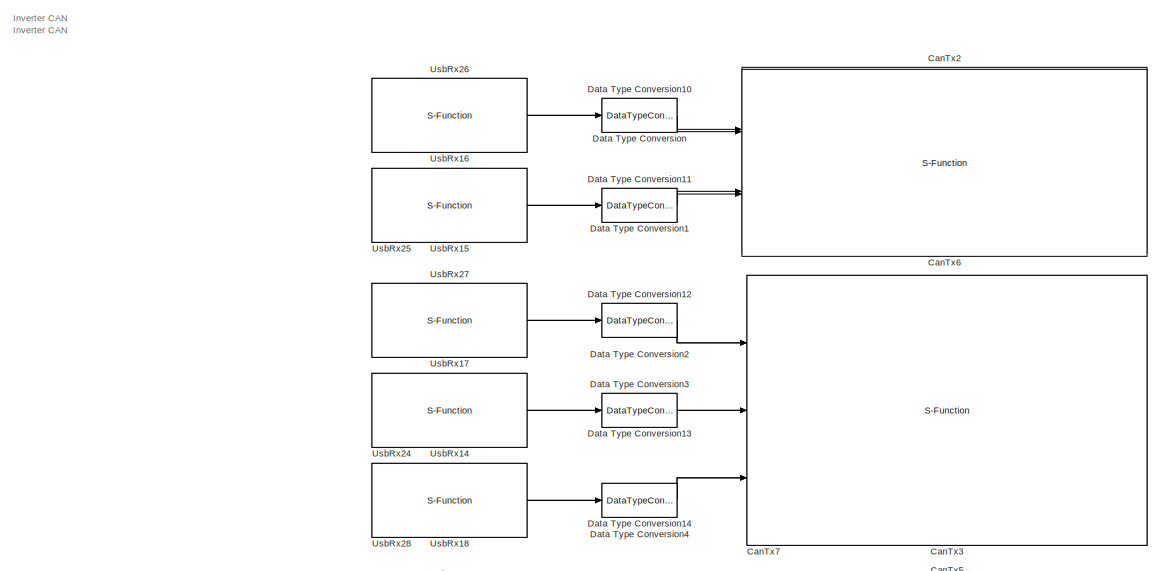
[diagram: MainTask/Comms_And_Data_Output_Layer - part 1/4, full width, top band]
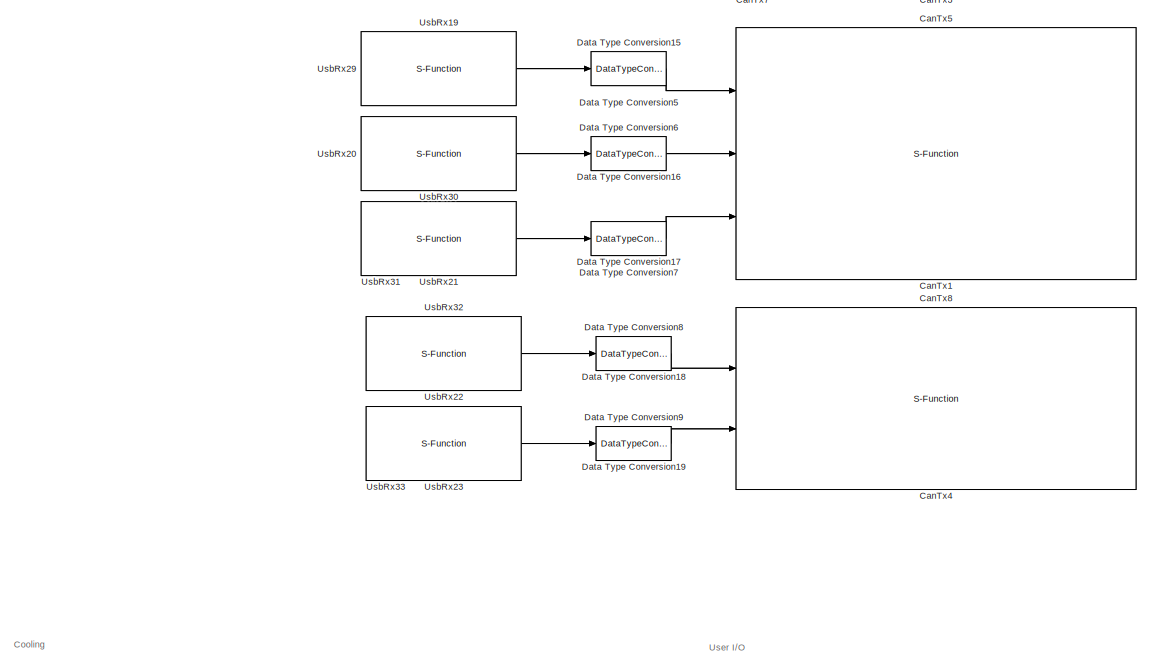
[diagram: MainTask/Comms_And_Data_Output_Layer - part 2/4, full width, top band]
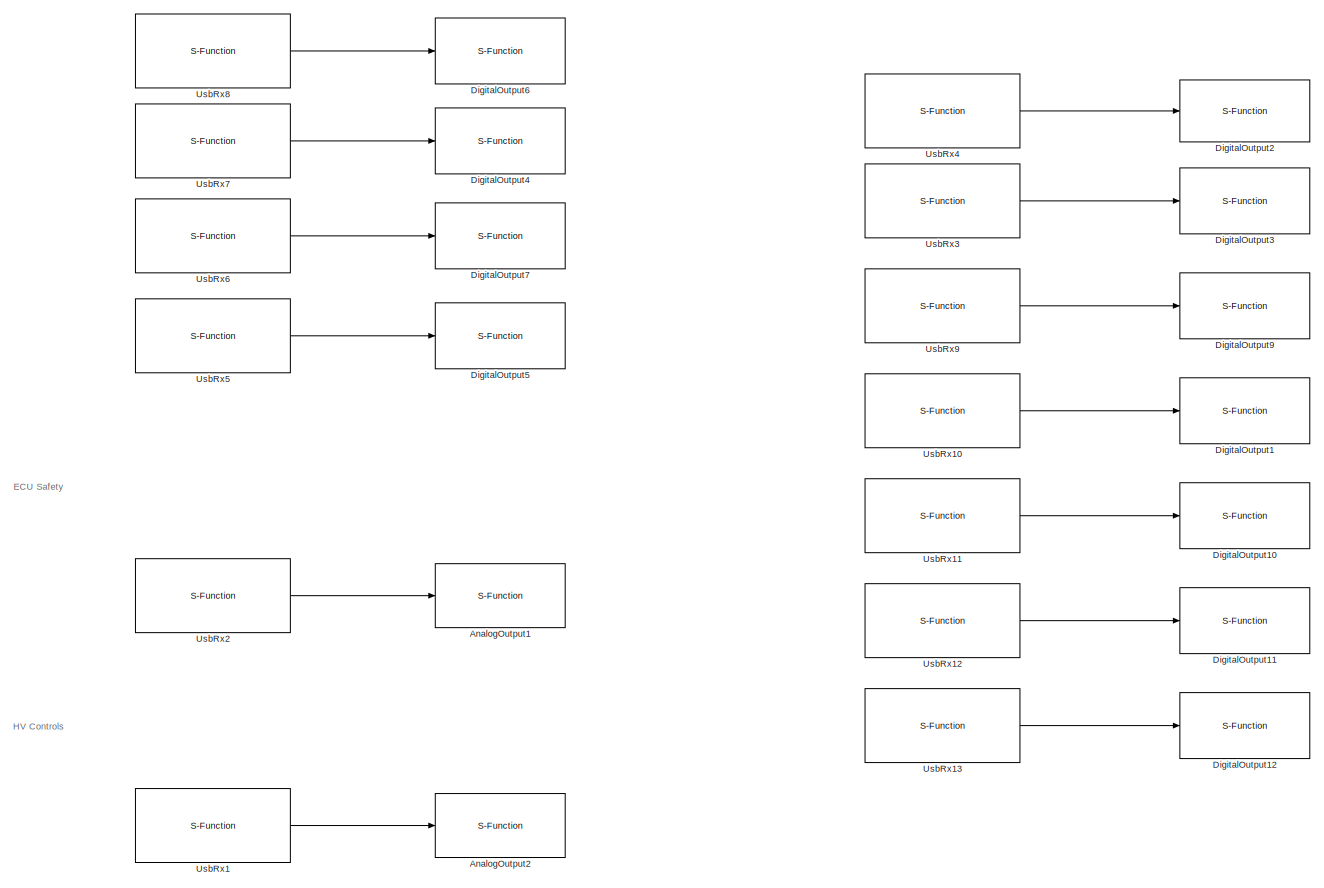
[diagram: MainTask/Comms_And_Data_Output_Layer - part 3/4, full width, middle band]
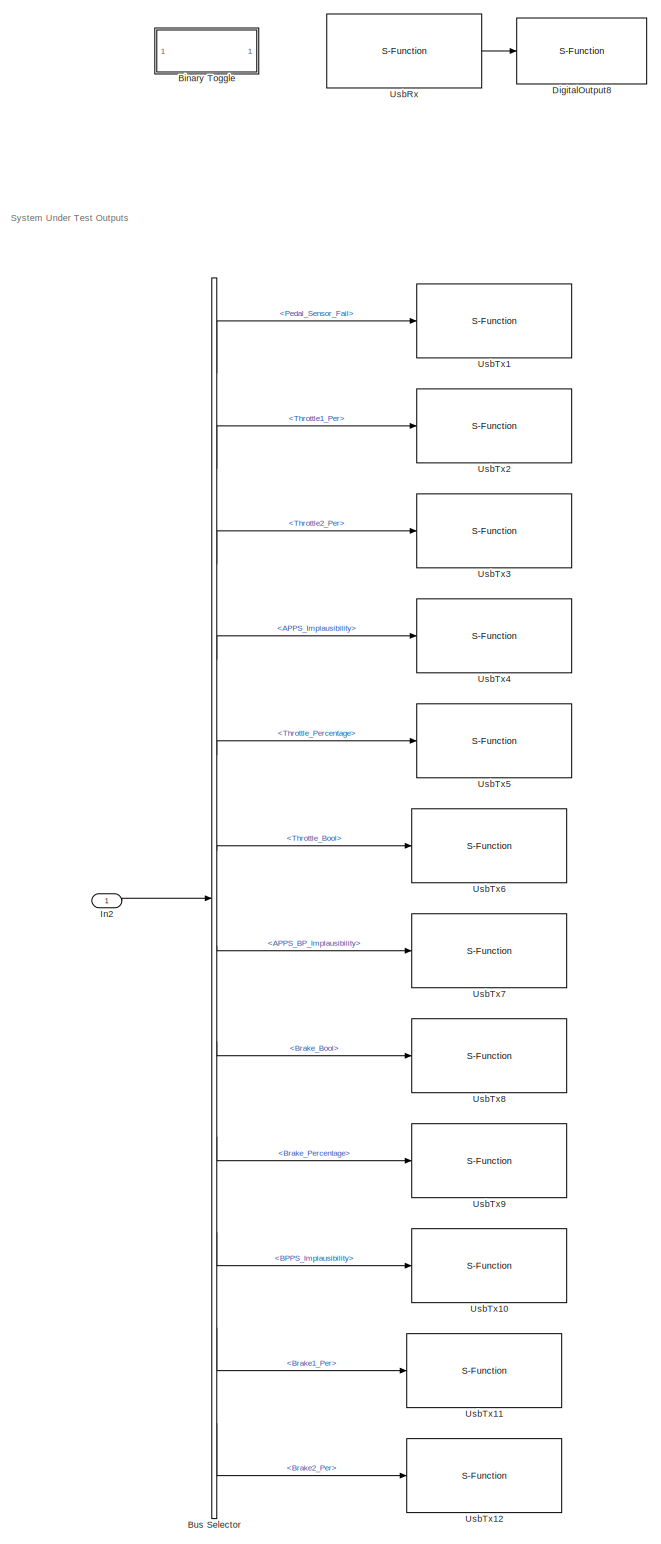
[diagram: MainTask/Comms_And_Data_Output_Layer - part 4/4, bottom left region]
BLOCK [SubSystem] MainTask/Comms_And_Data_Output_Layer
  Ports = [1]
  RequestExecContextInheritance = off
  Variant = off
BLOCK [S-Function] MainTask/Comms_And_Data_Output_Layer/AnalogOutput1
  Description = This block interface the 8 Analog Outputs. The analog outputs are 0/20V. Voltage input is set in mV
  EnableBusSupport = off
  FunctionName = NsiIo_AnalogOutput
  OpenFcn = NsiIo_AnalogOutput_OpenFcn();
  Parameters = Channel,Feedback
  Ports = [1]
  SFcnIsStateOwnerBlock = off
  SFunctionDeploymentMode = off
BLOCK [S-Function] MainTask/Comms_And_Data_Output_Layer/AnalogOutput2
  Description = This block interface the 8 Analog Outputs. The analog outputs are 0/20V. Voltage input is set in mV
  EnableBusSupport = off
  FunctionName = NsiIo_AnalogOutput
  OpenFcn = NsiIo_AnalogOutput_OpenFcn();
  Parameters = Channel,Feedback
  Ports = [1]
  SFcnIsStateOwnerBlock = off
  SFunctionDeploymentMode = off
BLOCK [SubSystem] MainTask/Comms_And_Data_Output_Layer/Binary Toggle
  Commented = on
  Ports = [1, 1]
  RequestExecContextInheritance = off
  Variant = off
BLOCK [Constant] MainTask/Comms_And_Data_Output_Layer/Binary Toggle/Constant1
  OutDataTypeStr = uint16
  SampleTime = -1
BLOCK [Reference] MainTask/Comms_And_Data_Output_Layer/Binary Toggle/D Flip-Flop  REF=simulink_extras/Flip Flops/D Flip-Flop
  Ports = [3, 2]
  SourceBlock = simulink_extras/Flip Flops/D Flip-Flop
  SourceProductBaseCode = SL
  SourceProductName = Simulink
  SourceType = DFlipFlop
BLOCK [Inport] MainTask/Comms_And_Data_Output_Layer/Binary Toggle/In1
  IconDisplay = Port number
BLOCK [Outport] MainTask/Comms_And_Data_Output_Layer/Binary Toggle/Out1
  IconDisplay = Port number
BLOCK [BusSelector] MainTask/Comms_And_Data_Output_Layer/Bus Selector
  OutputAsBus = off
  OutputSignals = Pedal_Sensor_Fail,Throttle1_Per,Throttle2_Per,APPS_Implausibility,Throttle_Percentage,Throttle_Bool,APPS_BP_Implausibility,Brake_Bool,Brake_Percentage,BPPS_Implausibility,Brake1_Per,Brake2_Per
  Ports = [1, 12]
BLOCK [S-Function] MainTask/Comms_And_Data_Output_Layer/CanTx1
  Commented = on
  EnableBusSupport = off
  FunctionName = NsiCan_Tx_J1939_Ext
  OpenFcn = NsiCan_Tx_J1939_Ext_OpenFcn();
  Parameters = data_can,channel,msg_name,ident,ident_type,dlc,signals,is_SA_Masked,is_physical,is_canfd
  Ports = [3]
  SFcnIsStateOwnerBlock = off
  SFunctionDeploymentMode = off
BLOCK [S-Function] MainTask/Comms_And_Data_Output_Layer/CanTx2
  Commented = on
  EnableBusSupport = off
  FunctionName = NsiCan_Tx_J1939_Ext
  OpenFcn = NsiCan_Tx_J1939_Ext_OpenFcn();
  Parameters = data_can,channel,msg_name,ident,ident_type,dlc,signals,is_SA_Masked,is_physical,is_canfd
  Ports = [2]
  SFcnIsStateOwnerBlock = off
  SFunctionDeploymentMode = off
BLOCK [S-Function] MainTask/Comms_And_Data_Output_Layer/CanTx3
  Commented = on
  EnableBusSupport = off
  FunctionName = NsiCan_Tx_J1939_Ext
  OpenFcn = NsiCan_Tx_J1939_Ext_OpenFcn();
  Parameters = data_can,channel,msg_name,ident,ident_type,dlc,signals,is_SA_Masked,is_physical,is_canfd
  Ports = [3]
  SFcnIsStateOwnerBlock = off
  SFunctionDeploymentMode = off
BLOCK [S-Function] MainTask/Comms_And_Data_Output_Layer/CanTx4
  Commented = on
  EnableBusSupport = off
  FunctionName = NsiCan_Tx_J1939_Ext
  OpenFcn = NsiCan_Tx_J1939_Ext_OpenFcn();
  Parameters = data_can,channel,msg_name,ident,ident_type,dlc,signals,is_SA_Masked,is_physical,is_canfd
  Ports = [2]
  SFcnIsStateOwnerBlock = off
  SFunctionDeploymentMode = off
BLOCK [S-Function] MainTask/Comms_And_Data_Output_Layer/CanTx5
  Commented = on
  EnableBusSupport = off
  FunctionName = NsiCan_Tx_J1939_Ext
  OpenFcn = NsiCan_Tx_J1939_Ext_OpenFcn();
  Parameters = data_can,channel,msg_name,ident,ident_type,dlc,signals,is_SA_Masked,is_physical,is_canfd
  Ports = [3]
  SFcnIsStateOwnerBlock = off
  SFunctionDeploymentMode = off
BLOCK [S-Function] MainTask/Comms_And_Data_Output_Layer/CanTx6
  Commented = on
  EnableBusSupport = off
  FunctionName = NsiCan_Tx_J1939_Ext
  OpenFcn = NsiCan_Tx_J1939_Ext_OpenFcn();
  Parameters = data_can,channel,msg_name,ident,ident_type,dlc,signals,is_SA_Masked,is_physical,is_canfd
  Ports = [2]
  SFcnIsStateOwnerBlock = off
  SFunctionDeploymentMode = off
BLOCK [S-Function] MainTask/Comms_And_Data_Output_Layer/CanTx7
  Commented = on
  EnableBusSupport = off
  FunctionName = NsiCan_Tx_J1939_Ext
  OpenFcn = NsiCan_Tx_J1939_Ext_OpenFcn();
  Parameters = data_can,channel,msg_name,ident,ident_type,dlc,signals,is_SA_Masked,is_physical,is_canfd
  Ports = [3]
  SFcnIsStateOwnerBlock = off
  SFunctionDeploymentMode = off
BLOCK [S-Function] MainTask/Comms_And_Data_Output_Layer/CanTx8
  Commented = on
  EnableBusSupport = off
  FunctionName = NsiCan_Tx_J1939_Ext
  OpenFcn = NsiCan_Tx_J1939_Ext_OpenFcn();
  Parameters = data_can,channel,msg_name,ident,ident_type,dlc,signals,is_SA_Masked,is_physical,is_canfd
  Ports = [2]
  SFcnIsStateOwnerBlock = off
  SFunctionDeploymentMode = off
BLOCK [DataTypeConversion] MainTask/Comms_And_Data_Output_Layer/Data Type Conversion
  Commented = on
  OutDataTypeStr = uint16
  RndMeth = Floor
  SaturateOnIntegerOverflow = off
BLOCK [DataTypeConversion] MainTask/Comms_And_Data_Output_Layer/Data Type Conversion1
  Commented = on
  OutDataTypeStr = uint16
  RndMeth = Floor
  SaturateOnIntegerOverflow = off
BLOCK [DataTypeConversion] MainTask/Comms_And_Data_Output_Layer/Data Type Conversion10
  Commented = on
  OutDataTypeStr = uint16
  RndMeth = Floor
  SaturateOnIntegerOverflow = off
BLOCK [DataTypeConversion] MainTask/Comms_And_Data_Output_Layer/Data Type Conversion11
  Commented = on
  OutDataTypeStr = uint16
  RndMeth = Floor
  SaturateOnIntegerOverflow = off
BLOCK [DataTypeConversion] MainTask/Comms_And_Data_Output_Layer/Data Type Conversion12
  Commented = on
  OutDataTypeStr = uint16
  RndMeth = Floor
  SaturateOnIntegerOverflow = off
BLOCK [DataTypeConversion] MainTask/Comms_And_Data_Output_Layer/Data Type Conversion13
  Commented = on
  OutDataTypeStr = uint16
  RndMeth = Floor
  SaturateOnIntegerOverflow = off
BLOCK [DataTypeConversion] MainTask/Comms_And_Data_Output_Layer/Data Type Conversion14
  Commented = on
  OutDataTypeStr = uint16
  RndMeth = Floor
  SaturateOnIntegerOverflow = off
BLOCK [DataTypeConversion] MainTask/Comms_And_Data_Output_Layer/Data Type Conversion15
  Commented = on
  OutDataTypeStr = uint16
  RndMeth = Floor
  SaturateOnIntegerOverflow = off
BLOCK [DataTypeConversion] MainTask/Comms_And_Data_Output_Layer/Data Type Conversion16
  Commented = on
  OutDataTypeStr = uint16
  RndMeth = Floor
  SaturateOnIntegerOverflow = off
BLOCK [DataTypeConversion] MainTask/Comms_And_Data_Output_Layer/Data Type Conversion17
  Commented = on
  OutDataTypeStr = uint16
  RndMeth = Floor
  SaturateOnIntegerOverflow = off
BLOCK [DataTypeConversion] MainTask/Comms_And_Data_Output_Layer/Data Type Conversion18
  Commented = on
  OutDataTypeStr = uint16
  RndMeth = Floor
  SaturateOnIntegerOverflow = off
BLOCK [DataTypeConversion] MainTask/Comms_And_Data_Output_Layer/Data Type Conversion19
  Commented = on
  OutDataTypeStr = uint16
  RndMeth = Floor
  SaturateOnIntegerOverflow = off
BLOCK [DataTypeConversion] MainTask/Comms_And_Data_Output_Layer/Data Type Conversion2
  Commented = on
  OutDataTypeStr = uint16
  RndMeth = Floor
  SaturateOnIntegerOverflow = off
BLOCK [DataTypeConversion] MainTask/Comms_And_Data_Output_Layer/Data Type Conversion3
  Commented = on
  OutDataTypeStr = uint16
  RndMeth = Floor
  SaturateOnIntegerOverflow = off
BLOCK [DataTypeConversion] MainTask/Comms_And_Data_Output_Layer/Data Type Conversion4
  Commented = on
  OutDataTypeStr = uint16
  RndMeth = Floor
  SaturateOnIntegerOverflow = off
BLOCK [DataTypeConversion] MainTask/Comms_And_Data_Output_Layer/Data Type Conversion5
  Commented = on
  OutDataTypeStr = uint16
  RndMeth = Floor
  SaturateOnIntegerOverflow = off
BLOCK [DataTypeConversion] MainTask/Comms_And_Data_Output_Layer/Data Type Conversion6
  Commented = on
  OutDataTypeStr = uint16
  RndMeth = Floor
  SaturateOnIntegerOverflow = off
BLOCK [DataTypeConversion] MainTask/Comms_And_Data_Output_Layer/Data Type Conversion7
  Commented = on
  OutDataTypeStr = uint16
  RndMeth = Floor
  SaturateOnIntegerOverflow = off
BLOCK [DataTypeConversion] MainTask/Comms_And_Data_Output_Layer/Data Type Conversion8
  Commented = on
  OutDataTypeStr = uint16
  RndMeth = Floor
  SaturateOnIntegerOverflow = off
BLOCK [DataTypeConversion] MainTask/Comms_And_Data_Output_Layer/Data Type Conversion9
  Commented = on
  OutDataTypeStr = uint16
  RndMeth = Floor
  SaturateOnIntegerOverflow = off
BLOCK [S-Function] MainTask/Comms_And_Data_Output_Layer/DigitalOutput1
  EnableBusSupport = off
  FunctionName = NsiIo_DigitalOutput
  OpenFcn = NsiIo_DigitalOutput_OpenFcn();
  Parameters = channel,side,feedback
  Ports = [1]
  SFcnIsStateOwnerBlock = off
  SFunctionDeploymentMode = off
BLOCK [S-Function] MainTask/Comms_And_Data_Output_Layer/DigitalOutput10
  EnableBusSupport = off
  FunctionName = NsiIo_DigitalOutput
  OpenFcn = NsiIo_DigitalOutput_OpenFcn();
  Parameters = channel,side,feedback
  Ports = [1]
  SFcnIsStateOwnerBlock = off
  SFunctionDeploymentMode = off
BLOCK [S-Function] MainTask/Comms_And_Data_Output_Layer/DigitalOutput11
  EnableBusSupport = off
  FunctionName = NsiIo_DigitalOutput
  OpenFcn = NsiIo_DigitalOutput_OpenFcn();
  Parameters = channel,side,feedback
  Ports = [1]
  SFcnIsStateOwnerBlock = off
  SFunctionDeploymentMode = off
BLOCK [S-Function] MainTask/Comms_And_Data_Output_Layer/DigitalOutput12
  EnableBusSupport = off
  FunctionName = NsiIo_DigitalOutput
  OpenFcn = NsiIo_DigitalOutput_OpenFcn();
  Parameters = channel,side,feedback
  Ports = [1]
  SFcnIsStateOwnerBlock = off
  SFunctionDeploymentMode = off
BLOCK [S-Function] MainTask/Comms_And_Data_Output_Layer/DigitalOutput2
  EnableBusSupport = off
  FunctionName = NsiIo_DigitalOutput
  OpenFcn = NsiIo_DigitalOutput_OpenFcn();
  Parameters = channel,side,feedback
  Ports = [1]
  SFcnIsStateOwnerBlock = off
  SFunctionDeploymentMode = off
BLOCK [S-Function] MainTask/Comms_And_Data_Output_Layer/DigitalOutput3
  EnableBusSupport = off
  FunctionName = NsiIo_DigitalOutput
  OpenFcn = NsiIo_DigitalOutput_OpenFcn();
  Parameters = channel,side,feedback
  Ports = [1]
  SFcnIsStateOwnerBlock = off
  SFunctionDeploymentMode = off
BLOCK [S-Function] MainTask/Comms_And_Data_Output_Layer/DigitalOutput4
  EnableBusSupport = off
  FunctionName = NsiIo_DigitalOutput
  OpenFcn = NsiIo_DigitalOutput_OpenFcn();
  Parameters = channel,side,feedback
  Ports = [1]
  SFcnIsStateOwnerBlock = off
  SFunctionDeploymentMode = off
BLOCK [S-Function] MainTask/Comms_And_Data_Output_Layer/DigitalOutput5
  EnableBusSupport = off
  FunctionName = NsiIo_DigitalOutput
  OpenFcn = NsiIo_DigitalOutput_OpenFcn();
  Parameters = channel,side,feedback
  Ports = [1]
  SFcnIsStateOwnerBlock = off
  SFunctionDeploymentMode = off
BLOCK [S-Function] MainTask/Comms_And_Data_Output_Layer/DigitalOutput6
  EnableBusSupport = off
  FunctionName = NsiIo_DigitalOutput
  OpenFcn = NsiIo_DigitalOutput_OpenFcn();
  Parameters = channel,side,feedback
  Ports = [1]
  SFcnIsStateOwnerBlock = off
  SFunctionDeploymentMode = off
BLOCK [S-Function] MainTask/Comms_And_Data_Output_Layer/DigitalOutput7
  EnableBusSupport = off
  FunctionName = NsiIo_DigitalOutput
  OpenFcn = NsiIo_DigitalOutput_OpenFcn();
  Parameters = channel,side,feedback
  Ports = [1]
  SFcnIsStateOwnerBlock = off
  SFunctionDeploymentMode = off
BLOCK [S-Function] MainTask/Comms_And_Data_Output_Layer/DigitalOutput8
  EnableBusSupport = off
  FunctionName = NsiIo_DigitalOutput
  OpenFcn = NsiIo_DigitalOutput_OpenFcn();
  Parameters = channel,side,feedback
  Ports = [1]
  SFcnIsStateOwnerBlock = off
  SFunctionDeploymentMode = off
BLOCK [S-Function] MainTask/Comms_And_Data_Output_Layer/DigitalOutput9
  EnableBusSupport = off
  FunctionName = NsiIo_DigitalOutput
  OpenFcn = NsiIo_DigitalOutput_OpenFcn();
  Parameters = channel,side,feedback
  Ports = [1]
  SFcnIsStateOwnerBlock = off
  SFunctionDeploymentMode = off
BLOCK [Inport] MainTask/Comms_And_Data_Output_Layer/In2
  IconDisplay = Port number
BLOCK [S-Function] MainTask/Comms_And_Data_Output_Layer/UsbRx
  EnableBusSupport = off
  FunctionName = NsiUsb_Rx
  OpenFcn = NsiUsb_Rx_OpenFcn();
  Parameters = signame,sigtype,resolution,offset,unite,value,is_trigger
  Ports = [0, 1]
  SFcnIsStateOwnerBlock = off
  SFunctionDeploymentMode = off
BLOCK [S-Function] MainTask/Comms_And_Data_Output_Layer/UsbRx1
  EnableBusSupport = off
  FunctionName = NsiUsb_Rx
  OpenFcn = NsiUsb_Rx_OpenFcn();
  Parameters = signame,sigtype,resolution,offset,unite,value,is_trigger
  Ports = [0, 1]
  SFcnIsStateOwnerBlock = off
  SFunctionDeploymentMode = off
BLOCK [S-Function] MainTask/Comms_And_Data_Output_Layer/UsbRx10
  EnableBusSupport = off
  FunctionName = NsiUsb_Rx
  OpenFcn = NsiUsb_Rx_OpenFcn();
  Parameters = signame,sigtype,resolution,offset,unite,value,is_trigger
  Ports = [0, 1]
  SFcnIsStateOwnerBlock = off
  SFunctionDeploymentMode = off
BLOCK [S-Function] MainTask/Comms_And_Data_Output_Layer/UsbRx11
  EnableBusSupport = off
  FunctionName = NsiUsb_Rx
  OpenFcn = NsiUsb_Rx_OpenFcn();
  Parameters = signame,sigtype,resolution,offset,unite,value,is_trigger
  Ports = [0, 1]
  SFcnIsStateOwnerBlock = off
  SFunctionDeploymentMode = off
BLOCK [S-Function] MainTask/Comms_And_Data_Output_Layer/UsbRx12
  EnableBusSupport = off
  FunctionName = NsiUsb_Rx
  OpenFcn = NsiUsb_Rx_OpenFcn();
  Parameters = signame,sigtype,resolution,offset,unite,value,is_trigger
  Ports = [0, 1]
  SFcnIsStateOwnerBlock = off
  SFunctionDeploymentMode = off
BLOCK [S-Function] MainTask/Comms_And_Data_Output_Layer/UsbRx13
  EnableBusSupport = off
  FunctionName = NsiUsb_Rx
  OpenFcn = NsiUsb_Rx_OpenFcn();
  Parameters = signame,sigtype,resolution,offset,unite,value,is_trigger
  Ports = [0, 1]
  SFcnIsStateOwnerBlock = off
  SFunctionDeploymentMode = off
BLOCK [S-Function] MainTask/Comms_And_Data_Output_Layer/UsbRx14
  Commented = on
  EnableBusSupport = off
  FunctionName = NsiUsb_Rx
  OpenFcn = NsiUsb_Rx_OpenFcn();
  Parameters = signame,sigtype,resolution,offset,unite,value,is_trigger
  Ports = [0, 1]
  SFcnIsStateOwnerBlock = off
  SFunctionDeploymentMode = off
BLOCK [S-Function] MainTask/Comms_And_Data_Output_Layer/UsbRx15
  Commented = on
  EnableBusSupport = off
  FunctionName = NsiUsb_Rx
  OpenFcn = NsiUsb_Rx_OpenFcn();
  Parameters = signame,sigtype,resolution,offset,unite,value,is_trigger
  Ports = [0, 1]
  SFcnIsStateOwnerBlock = off
  SFunctionDeploymentMode = off
BLOCK [S-Function] MainTask/Comms_And_Data_Output_Layer/UsbRx16
  Commented = on
  EnableBusSupport = off
  FunctionName = NsiUsb_Rx
  OpenFcn = NsiUsb_Rx_OpenFcn();
  Parameters = signame,sigtype,resolution,offset,unite,value,is_trigger
  Ports = [0, 1]
  SFcnIsStateOwnerBlock = off
  SFunctionDeploymentMode = off
BLOCK [S-Function] MainTask/Comms_And_Data_Output_Layer/UsbRx17
  Commented = on
  EnableBusSupport = off
  FunctionName = NsiUsb_Rx
  OpenFcn = NsiUsb_Rx_OpenFcn();
  Parameters = signame,sigtype,resolution,offset,unite,value,is_trigger
  Ports = [0, 1]
  SFcnIsStateOwnerBlock = off
  SFunctionDeploymentMode = off
BLOCK [S-Function] MainTask/Comms_And_Data_Output_Layer/UsbRx18
  Commented = on
  EnableBusSupport = off
  FunctionName = NsiUsb_Rx
  OpenFcn = NsiUsb_Rx_OpenFcn();
  Parameters = signame,sigtype,resolution,offset,unite,value,is_trigger
  Ports = [0, 1]
  SFcnIsStateOwnerBlock = off
  SFunctionDeploymentMode = off
BLOCK [S-Function] MainTask/Comms_And_Data_Output_Layer/UsbRx19
  Commented = on
  EnableBusSupport = off
  FunctionName = NsiUsb_Rx
  OpenFcn = NsiUsb_Rx_OpenFcn();
  Parameters = signame,sigtype,resolution,offset,unite,value,is_trigger
  Ports = [0, 1]
  SFcnIsStateOwnerBlock = off
  SFunctionDeploymentMode = off
BLOCK [S-Function] MainTask/Comms_And_Data_Output_Layer/UsbRx2
  EnableBusSupport = off
  FunctionName = NsiUsb_Rx
  OpenFcn = NsiUsb_Rx_OpenFcn();
  Parameters = signame,sigtype,resolution,offset,unite,value,is_trigger
  Ports = [0, 1]
  SFcnIsStateOwnerBlock = off
  SFunctionDeploymentMode = off
BLOCK [S-Function] MainTask/Comms_And_Data_Output_Layer/UsbRx20
  Commented = on
  EnableBusSupport = off
  FunctionName = NsiUsb_Rx
  OpenFcn = NsiUsb_Rx_OpenFcn();
  Parameters = signame,sigtype,resolution,offset,unite,value,is_trigger
  Ports = [0, 1]
  SFcnIsStateOwnerBlock = off
  SFunctionDeploymentMode = off
BLOCK [S-Function] MainTask/Comms_And_Data_Output_Layer/UsbRx21
  Commented = on
  EnableBusSupport = off
  FunctionName = NsiUsb_Rx
  OpenFcn = NsiUsb_Rx_OpenFcn();
  Parameters = signame,sigtype,resolution,offset,unite,value,is_trigger
  Ports = [0, 1]
  SFcnIsStateOwnerBlock = off
  SFunctionDeploymentMode = off
BLOCK [S-Function] MainTask/Comms_And_Data_Output_Layer/UsbRx22
  Commented = on
  EnableBusSupport = off
  FunctionName = NsiUsb_Rx
  OpenFcn = NsiUsb_Rx_OpenFcn();
  Parameters = signame,sigtype,resolution,offset,unite,value,is_trigger
  Ports = [0, 1]
  SFcnIsStateOwnerBlock = off
  SFunctionDeploymentMode = off
BLOCK [S-Function] MainTask/Comms_And_Data_Output_Layer/UsbRx23
  Commented = on
  EnableBusSupport = off
  FunctionName = NsiUsb_Rx
  OpenFcn = NsiUsb_Rx_OpenFcn();
  Parameters = signame,sigtype,resolution,offset,unite,value,is_trigger
  Ports = [0, 1]
  SFcnIsStateOwnerBlock = off
  SFunctionDeploymentMode = off
BLOCK [S-Function] MainTask/Comms_And_Data_Output_Layer/UsbRx24
  Commented = on
  EnableBusSupport = off
  FunctionName = NsiUsb_Rx
  OpenFcn = NsiUsb_Rx_OpenFcn();
  Parameters = signame,sigtype,resolution,offset,unite,value,is_trigger
  Ports = [0, 1]
  SFcnIsStateOwnerBlock = off
  SFunctionDeploymentMode = off
BLOCK [S-Function] MainTask/Comms_And_Data_Output_Layer/UsbRx25
  Commented = on
  EnableBusSupport = off
  FunctionName = NsiUsb_Rx
  OpenFcn = NsiUsb_Rx_OpenFcn();
  Parameters = signame,sigtype,resolution,offset,unite,value,is_trigger
  Ports = [0, 1]
  SFcnIsStateOwnerBlock = off
  SFunctionDeploymentMode = off
BLOCK [S-Function] MainTask/Comms_And_Data_Output_Layer/UsbRx26
  Commented = on
  EnableBusSupport = off
  FunctionName = NsiUsb_Rx
  OpenFcn = NsiUsb_Rx_OpenFcn();
  Parameters = signame,sigtype,resolution,offset,unite,value,is_trigger
  Ports = [0, 1]
  SFcnIsStateOwnerBlock = off
  SFunctionDeploymentMode = off
BLOCK [S-Function] MainTask/Comms_And_Data_Output_Layer/UsbRx27
  Commented = on
  EnableBusSupport = off
  FunctionName = NsiUsb_Rx
  OpenFcn = NsiUsb_Rx_OpenFcn();
  Parameters = signame,sigtype,resolution,offset,unite,value,is_trigger
  Ports = [0, 1]
  SFcnIsStateOwnerBlock = off
  SFunctionDeploymentMode = off
BLOCK [S-Function] MainTask/Comms_And_Data_Output_Layer/UsbRx28
  Commented = on
  EnableBusSupport = off
  FunctionName = NsiUsb_Rx
  OpenFcn = NsiUsb_Rx_OpenFcn();
  Parameters = signame,sigtype,resolution,offset,unite,value,is_trigger
  Ports = [0, 1]
  SFcnIsStateOwnerBlock = off
  SFunctionDeploymentMode = off
BLOCK [S-Function] MainTask/Comms_And_Data_Output_Layer/UsbRx29
  Commented = on
  EnableBusSupport = off
  FunctionName = NsiUsb_Rx
  OpenFcn = NsiUsb_Rx_OpenFcn();
  Parameters = signame,sigtype,resolution,offset,unite,value,is_trigger
  Ports = [0, 1]
  SFcnIsStateOwnerBlock = off
  SFunctionDeploymentMode = off
BLOCK [S-Function] MainTask/Comms_And_Data_Output_Layer/UsbRx3
  EnableBusSupport = off
  FunctionName = NsiUsb_Rx
  OpenFcn = NsiUsb_Rx_OpenFcn();
  Parameters = signame,sigtype,resolution,offset,unite,value,is_trigger
  Ports = [0, 1]
  SFcnIsStateOwnerBlock = off
  SFunctionDeploymentMode = off
BLOCK [S-Function] MainTask/Comms_And_Data_Output_Layer/UsbRx30
  Commented = on
  EnableBusSupport = off
  FunctionName = NsiUsb_Rx
  OpenFcn = NsiUsb_Rx_OpenFcn();
  Parameters = signame,sigtype,resolution,offset,unite,value,is_trigger
  Ports = [0, 1]
  SFcnIsStateOwnerBlock = off
  SFunctionDeploymentMode = off
BLOCK [S-Function] MainTask/Comms_And_Data_Output_Layer/UsbRx31
  Commented = on
  EnableBusSupport = off
  FunctionName = NsiUsb_Rx
  OpenFcn = NsiUsb_Rx_OpenFcn();
  Parameters = signame,sigtype,resolution,offset,unite,value,is_trigger
  Ports = [0, 1]
  SFcnIsStateOwnerBlock = off
  SFunctionDeploymentMode = off
BLOCK [S-Function] MainTask/Comms_And_Data_Output_Layer/UsbRx32
  Commented = on
  EnableBusSupport = off
  FunctionName = NsiUsb_Rx
  OpenFcn = NsiUsb_Rx_OpenFcn();
  Parameters = signame,sigtype,resolution,offset,unite,value,is_trigger
  Ports = [0, 1]
  SFcnIsStateOwnerBlock = off
  SFunctionDeploymentMode = off
BLOCK [S-Function] MainTask/Comms_And_Data_Output_Layer/UsbRx33
  Commented = on
  EnableBusSupport = off
  FunctionName = NsiUsb_Rx
  OpenFcn = NsiUsb_Rx_OpenFcn();
  Parameters = signame,sigtype,resolution,offset,unite,value,is_trigger
  Ports = [0, 1]
  SFcnIsStateOwnerBlock = off
  SFunctionDeploymentMode = off
BLOCK [S-Function] MainTask/Comms_And_Data_Output_Layer/UsbRx4
  EnableBusSupport = off
  FunctionName = NsiUsb_Rx
  OpenFcn = NsiUsb_Rx_OpenFcn();
  Parameters = signame,sigtype,resolution,offset,unite,value,is_trigger
  Ports = [0, 1]
  SFcnIsStateOwnerBlock = off
  SFunctionDeploymentMode = off
BLOCK [S-Function] MainTask/Comms_And_Data_Output_Layer/UsbRx5
  EnableBusSupport = off
  FunctionName = NsiUsb_Rx
  OpenFcn = NsiUsb_Rx_OpenFcn();
  Parameters = signame,sigtype,resolution,offset,unite,value,is_trigger
  Ports = [0, 1]
  SFcnIsStateOwnerBlock = off
  SFunctionDeploymentMode = off
BLOCK [S-Function] MainTask/Comms_And_Data_Output_Layer/UsbRx6
  EnableBusSupport = off
  FunctionName = NsiUsb_Rx
  OpenFcn = NsiUsb_Rx_OpenFcn();
  Parameters = signame,sigtype,resolution,offset,unite,value,is_trigger
  Ports = [0, 1]
  SFcnIsStateOwnerBlock = off
  SFunctionDeploymentMode = off
BLOCK [S-Function] MainTask/Comms_And_Data_Output_Layer/UsbRx7
  EnableBusSupport = off
  FunctionName = NsiUsb_Rx
  OpenFcn = NsiUsb_Rx_OpenFcn();
  Parameters = signame,sigtype,resolution,offset,unite,value,is_trigger
  Ports = [0, 1]
  SFcnIsStateOwnerBlock = off
  SFunctionDeploymentMode = off
BLOCK [S-Function] MainTask/Comms_And_Data_Output_Layer/UsbRx8
  EnableBusSupport = off
  FunctionName = NsiUsb_Rx
  OpenFcn = NsiUsb_Rx_OpenFcn();
  Parameters = signame,sigtype,resolution,offset,unite,value,is_trigger
  Ports = [0, 1]
  SFcnIsStateOwnerBlock = off
  SFunctionDeploymentMode = off
BLOCK [S-Function] MainTask/Comms_And_Data_Output_Layer/UsbRx9
  EnableBusSupport = off
  FunctionName = NsiUsb_Rx
  OpenFcn = NsiUsb_Rx_OpenFcn();
  Parameters = signame,sigtype,resolution,offset,unite,value,is_trigger
  Ports = [0, 1]
  SFcnIsStateOwnerBlock = off
  SFunctionDeploymentMode = off
BLOCK [S-Function] MainTask/Comms_And_Data_Output_Layer/UsbTx1
  EnableBusSupport = off
  FunctionName = NsiUsb_Tx
  OpenFcn = NsiUsb_Tx_OpenFcn();
  Parameters = signame,resolution,offset,unite
  Ports = [1]
  SFcnIsStateOwnerBlock = off
  SFunctionDeploymentMode = off
BLOCK [S-Function] MainTask/Comms_And_Data_Output_Layer/UsbTx10
  EnableBusSupport = off
  FunctionName = NsiUsb_Tx
  OpenFcn = NsiUsb_Tx_OpenFcn();
  Parameters = signame,resolution,offset,unite
  Ports = [1]
  SFcnIsStateOwnerBlock = off
  SFunctionDeploymentMode = off
BLOCK [S-Function] MainTask/Comms_And_Data_Output_Layer/UsbTx11
  EnableBusSupport = off
  FunctionName = NsiUsb_Tx
  OpenFcn = NsiUsb_Tx_OpenFcn();
  Parameters = signame,resolution,offset,unite
  Ports = [1]
  SFcnIsStateOwnerBlock = off
  SFunctionDeploymentMode = off
BLOCK [S-Function] MainTask/Comms_And_Data_Output_Layer/UsbTx12
  EnableBusSupport = off
  FunctionName = NsiUsb_Tx
  OpenFcn = NsiUsb_Tx_OpenFcn();
  Parameters = signame,resolution,offset,unite
  Ports = [1]
  SFcnIsStateOwnerBlock = off
  SFunctionDeploymentMode = off
BLOCK [S-Function] MainTask/Comms_And_Data_Output_Layer/UsbTx2
  EnableBusSupport = off
  FunctionName = NsiUsb_Tx
  OpenFcn = NsiUsb_Tx_OpenFcn();
  Parameters = signame,resolution,offset,unite
  Ports = [1]
  SFcnIsStateOwnerBlock = off
  SFunctionDeploymentMode = off
BLOCK [S-Function] MainTask/Comms_And_Data_Output_Layer/UsbTx3
  EnableBusSupport = off
  FunctionName = NsiUsb_Tx
  OpenFcn = NsiUsb_Tx_OpenFcn();
  Parameters = signame,resolution,offset,unite
  Ports = [1]
  SFcnIsStateOwnerBlock = off
  SFunctionDeploymentMode = off
BLOCK [S-Function] MainTask/Comms_And_Data_Output_Layer/UsbTx4
  EnableBusSupport = off
  FunctionName = NsiUsb_Tx
  OpenFcn = NsiUsb_Tx_OpenFcn();
  Parameters = signame,resolution,offset,unite
  Ports = [1]
  SFcnIsStateOwnerBlock = off
  SFunctionDeploymentMode = off
BLOCK [S-Function] MainTask/Comms_And_Data_Output_Layer/UsbTx5
  EnableBusSupport = off
  FunctionName = NsiUsb_Tx
  OpenFcn = NsiUsb_Tx_OpenFcn();
  Parameters = signame,resolution,offset,unite
  Ports = [1]
  SFcnIsStateOwnerBlock = off
  SFunctionDeploymentMode = off
BLOCK [S-Function] MainTask/Comms_And_Data_Output_Layer/UsbTx6
  EnableBusSupport = off
  FunctionName = NsiUsb_Tx
  OpenFcn = NsiUsb_Tx_OpenFcn();
  Parameters = signame,resolution,offset,unite
  Ports = [1]
  SFcnIsStateOwnerBlock = off
  SFunctionDeploymentMode = off
BLOCK [S-Function] MainTask/Comms_And_Data_Output_Layer/UsbTx7
  EnableBusSupport = off
  FunctionName = NsiUsb_Tx
  OpenFcn = NsiUsb_Tx_OpenFcn();
  Parameters = signame,resolution,offset,unite
  Ports = [1]
  SFcnIsStateOwnerBlock = off
  SFunctionDeploymentMode = off
BLOCK [S-Function] MainTask/Comms_And_Data_Output_Layer/UsbTx8
  EnableBusSupport = off
  FunctionName = NsiUsb_Tx
  OpenFcn = NsiUsb_Tx_OpenFcn();
  Parameters = signame,resolution,offset,unite
  Ports = [1]
  SFcnIsStateOwnerBlock = off
  SFunctionDeploymentMode = off
BLOCK [S-Function] MainTask/Comms_And_Data_Output_Layer/UsbTx9
  EnableBusSupport = off
  FunctionName = NsiUsb_Tx
  OpenFcn = NsiUsb_Tx_OpenFcn();
  Parameters = signame,resolution,offset,unite
  Ports = [1]
  SFcnIsStateOwnerBlock = off
  SFunctionDeploymentMode = off
BLOCK [SubSystem] MainTask/Init
  CopyFcn = cccopyfcn(gcb)
  OpenFcn = ccopenfcn('System Initialize Function')
  Ports = []
  RequestExecContextInheritance = off
  Variant = off
BLOCK [SubSystem] MainTask/System under test
  Ports = [1, 1]
  RequestExecContextInheritance = off
  Variant = off
BLOCK [SubSystem] MainTask/System under test/APPS and BP Plausibility
  Ports = [2, 2]
  RequestExecContextInheritance = off
  Variant = off
BLOCK [Outport] MainTask/System under test/APPS and BP Plausibility/APPS_BP_Implausibility
  IconDisplay = Port number
  Port = 2
BLOCK [Inport] MainTask/System under test/APPS and BP Plausibility/Brake_%
  IconDisplay = Port number
  Port = 2
BLOCK [Constant] MainTask/System under test/APPS and BP Plausibility/Constant
  Value = 20
BLOCK [Constant] MainTask/System under test/APPS and BP Plausibility/Constant1
  Value = 25
BLOCK [Constant] MainTask/System under test/APPS and BP Plausibility/Constant2
  Value = 5
BLOCK [Logic] MainTask/System under test/APPS and BP Plausibility/Logical Operator
  AllPortsSameDT = off
  OutDataTypeStr = boolean
  Ports = [2, 1]
BLOCK [Logic] MainTask/System under test/APPS and BP Plausibility/Logical Operator1
  AllPortsSameDT = off
  OutDataTypeStr = boolean
  Ports = [2, 1]
BLOCK [Logic] MainTask/System under test/APPS and BP Plausibility/Logical Operator2
  AllPortsSameDT = off
  Operator = OR
  OutDataTypeStr = boolean
  Ports = [2, 1]
BLOCK [Logic] MainTask/System under test/APPS and BP Plausibility/Logical Operator3
  AllPortsSameDT = off
  Inputs = 1
  Operator = NOT
  OutDataTypeStr = boolean
  Ports = [1, 1]
BLOCK [Product] MainTask/System under test/APPS and BP Plausibility/Product
  InputSameDT = off
  OutDataTypeStr = uint8
  Ports = [2, 1]
  RndMeth = Floor
  SaturateOnIntegerOverflow = off
BLOCK [RelationalOperator] MainTask/System under test/APPS and BP Plausibility/Relational Operator
  InputSameDT = off
  OutDataTypeStr = boolean
  Ports = [2, 1]
  RndMeth = Simplest
BLOCK [RelationalOperator] MainTask/System under test/APPS and BP Plausibility/Relational Operator1
  InputSameDT = off
  Operator = >
  OutDataTypeStr = boolean
  Ports = [2, 1]
  RndMeth = Simplest
BLOCK [RelationalOperator] MainTask/System under test/APPS and BP Plausibility/Relational Operator2
  InputSameDT = off
  Operator = >
  OutDataTypeStr = boolean
  Ports = [2, 1]
  RndMeth = Simplest
BLOCK [Outport] MainTask/System under test/APPS and BP Plausibility/Throttle_%
  IconDisplay = Port number
BLOCK [Inport] MainTask/System under test/APPS and BP Plausibility/Throttle_In
  IconDisplay = Port number
BLOCK [Delay] MainTask/System under test/APPS and BP Plausibility/prv_APPS_BP1
  DelayLength = 1
  InitialCondition = 0
  InputPortMap = u0
  Ports = [1, 1]
BLOCK [SubSystem] MainTask/System under test/APPS_Implausibility_Check
  Ports = [2, 2]
  RequestExecContextInheritance = off
  Variant = off
BLOCK [Outport] MainTask/System under test/APPS_Implausibility_Check/APPS_Implausibility
  IconDisplay = Port number
BLOCK [Constant] MainTask/System under test/APPS_Implausibility_Check/Constant
  Value = 15
BLOCK [DataTypeConversion] MainTask/System under test/APPS_Implausibility_Check/Data Type Conversion
  OutDataTypeStr = int8
  RndMeth = Floor
  SaturateOnIntegerOverflow = off
BLOCK [Ground] MainTask/System under test/APPS_Implausibility_Check/Ground
BLOCK [Logic] MainTask/System under test/APPS_Implausibility_Check/Logical Operator
  AllPortsSameDT = off
  Operator = OR
  OutDataTypeStr = boolean
  Ports = [2, 1]
BLOCK [Logic] MainTask/System under test/APPS_Implausibility_Check/Logical Operator3
  AllPortsSameDT = off
  Inputs = 1
  Operator = NOT
  OutDataTypeStr = boolean
  Ports = [1, 1]
BLOCK [Sum] MainTask/System under test/APPS_Implausibility_Check/LowerLinit
  InputSameDT = off
  Inputs = -+
  OutDataTypeStr = Inherit: Inherit via internal rule
  Ports = [2, 1]
  SaturateOnIntegerOverflow = off
BLOCK [MinMax] MainTask/System under test/APPS_Implausibility_Check/MinMax
  InputSameDT = off
  Inputs = 2
  Ports = [2, 1]
  SaturateOnIntegerOverflow = off
BLOCK [Product] MainTask/System under test/APPS_Implausibility_Check/Product
  InputSameDT = off
  OutDataTypeStr = Inherit: Inherit via internal rule
  Ports = [2, 1]
  RndMeth = Floor
  SaturateOnIntegerOverflow = off
BLOCK [Product] MainTask/System under test/APPS_Implausibility_Check/Product of Elements
  InputSameDT = off
  Inputs = *
  OutDataTypeStr = Inherit: Inherit via internal rule
  Ports = [1, 1]
  RndMeth = Floor
  SaturateOnIntegerOverflow = off
BLOCK [RelationalOperator] MainTask/System under test/APPS_Implausibility_Check/Relational Operator
  InputSameDT = off
  OutDataTypeStr = boolean
  Ports = [2, 1]
  RndMeth = Simplest
BLOCK [RelationalOperator] MainTask/System under test/APPS_Implausibility_Check/Relational Operator1
  InputSameDT = off
  Operator = <=
  OutDataTypeStr = boolean
  Ports = [2, 1]
  RndMeth = Simplest
BLOCK [Reference] MainTask/System under test/APPS_Implausibility_Check/Tapped Delay  REF=simulink/Discrete/Tapped Delay
  Ports = [1, 1]
  SourceBlock = simulink/Discrete/Tapped Delay
  SourceProductBaseCode = SL
  SourceProductName = Simulink
  SourceType = Tapped Delay Line
BLOCK [Terminator] MainTask/System under test/APPS_Implausibility_Check/Terminator
BLOCK [Inport] MainTask/System under test/APPS_Implausibility_Check/Throttle1_Per
  IconDisplay = Port number
BLOCK [Inport] MainTask/System under test/APPS_Implausibility_Check/Throttle2_Per
  IconDisplay = Port number
  Port = 2
BLOCK [Outport] MainTask/System under test/APPS_Implausibility_Check/Throttle_%
  IconDisplay = Port number
  Port = 2
BLOCK [Sum] MainTask/System under test/APPS_Implausibility_Check/UpperLinit
  InputSameDT = off
  OutDataTypeStr = Inherit: Inherit via internal rule
  Ports = [2, 1]
  SaturateOnIntegerOverflow = off
BLOCK [SubSystem] MainTask/System under test/BPPS_Implausibility_Check
  Ports = [2, 2]
  RequestExecContextInheritance = off
  Variant = off
BLOCK [Outport] MainTask/System under test/BPPS_Implausibility_Check/BPPS_Implausibility
  IconDisplay = Port number
  Port = 2
BLOCK [Inport] MainTask/System under test/BPPS_Implausibility_Check/Brake1_Per
  IconDisplay = Port number
BLOCK [Inport] MainTask/System under test/BPPS_Implausibility_Check/Brake2_Per
  IconDisplay = Port number
  Port = 2
BLOCK [Outport] MainTask/System under test/BPPS_Implausibility_Check/Brake_%
  IconDisplay = Port number
BLOCK [Constant] MainTask/System under test/BPPS_Implausibility_Check/Constant
  Value = 15
BLOCK [Logic] MainTask/System under test/BPPS_Implausibility_Check/Logical Operator
  AllPortsSameDT = off
  Operator = OR
  OutDataTypeStr = boolean
  Ports = [2, 1]
BLOCK [Sum] MainTask/System under test/BPPS_Implausibility_Check/LowerLinit
  InputSameDT = off
  Inputs = -+
  OutDataTypeStr = Inherit: Inherit via internal rule
  Ports = [2, 1]
  SaturateOnIntegerOverflow = off
BLOCK [MinMax] MainTask/System under test/BPPS_Implausibility_Check/MinMax
  InputSameDT = off
  Inputs = 2
  Ports = [2, 1]
  SaturateOnIntegerOverflow = off
BLOCK [Product] MainTask/System under test/BPPS_Implausibility_Check/Product of Elements
  InputSameDT = off
  Inputs = *
  OutDataTypeStr = Inherit: Inherit via internal rule
  Ports = [1, 1]
  RndMeth = Floor
  SaturateOnIntegerOverflow = off
BLOCK [RelationalOperator] MainTask/System under test/BPPS_Implausibility_Check/Relational Operator
  InputSameDT = off
  OutDataTypeStr = boolean
  Ports = [2, 1]
  RndMeth = Simplest
BLOCK [RelationalOperator] MainTask/System under test/BPPS_Implausibility_Check/Relational Operator1
  InputSameDT = off
  Operator = <=
  OutDataTypeStr = boolean
  Ports = [2, 1]
  RndMeth = Simplest
BLOCK [Reference] MainTask/System under test/BPPS_Implausibility_Check/Tapped Delay  REF=simulink/Discrete/Tapped Delay
  Ports = [1, 1]
  SourceBlock = simulink/Discrete/Tapped Delay
  SourceProductBaseCode = SL
  SourceProductName = Simulink
  SourceType = Tapped Delay Line
BLOCK [Sum] MainTask/System under test/BPPS_Implausibility_Check/UpperLinit
  InputSameDT = off
  OutDataTypeStr = Inherit: Inherit via internal rule
  Ports = [2, 1]
  SaturateOnIntegerOverflow = off
BLOCK [BusCreator] MainTask/System under test/Bus Creator
  DisplayOption = bar
  InheritFromInputs = on
  Inputs = 12
  Ports = [12, 1]
BLOCK [BusSelector] MainTask/System under test/Bus Selector
  OutputAsBus = off
  OutputSignals = signal1.Throttle1_Voltage,signal1.Throttle2_Voltage,signal1.Brake_POT,signal1.Brake1_Pressure,signal1.Brake2_Pressure
  Ports = [1, 5]
BLOCK [Inport] MainTask/System under test/In1
  IconDisplay = Port number
BLOCK [S-Function] MainTask/System under test/Memory read
  EnableBusSupport = off
  FunctionName = NsiMem_Read
  OpenFcn = NsiMem_Read_OpenFcn();
  Parameters = name_var,type_var,size_var,tunable_var
  Ports = [0, 1]
  SFcnIsStateOwnerBlock = off
  SFunctionDeploymentMode = off
BLOCK [S-Function] MainTask/System under test/Memory read1
  EnableBusSupport = off
  FunctionName = NsiMem_Read
  OpenFcn = NsiMem_Read_OpenFcn();
  Parameters = name_var,type_var,size_var,tunable_var
  Ports = [0, 1]
  SFcnIsStateOwnerBlock = off
  SFunctionDeploymentMode = off
BLOCK [Outport] MainTask/System under test/Out1
  IconDisplay = Port number
BLOCK [RelationalOperator] MainTask/System under test/Relational Operator
  InputSameDT = off
  OutDataTypeStr = boolean
  Ports = [2, 1]
  RndMeth = Simplest
BLOCK [RelationalOperator] MainTask/System under test/Relational Operator1
  InputSameDT = off
  OutDataTypeStr = boolean
  Ports = [2, 1]
  RndMeth = Simplest
BLOCK [SubSystem] MainTask/System under test/Sensor Plausibility
  Ports = [5, 6]
  RequestExecContextInheritance = off
  Variant = off
BLOCK [Inport] MainTask/System under test/Sensor Plausibility/<Brake_Voltage>
  IconDisplay = Port number
  Port = 3
BLOCK [Inport] MainTask/System under test/Sensor Plausibility/<Brake_Voltage>1
  IconDisplay = Port number
  Port = 4
BLOCK [Inport] MainTask/System under test/Sensor Plausibility/<Brake_Voltage>2
  IconDisplay = Port number
  Port = 5
BLOCK [Inport] MainTask/System under test/Sensor Plausibility/<Throttle1_Voltage>
  IconDisplay = Port number
BLOCK [Inport] MainTask/System under test/Sensor Plausibility/<Throttle2_Voltage>
  IconDisplay = Port number
  Port = 2
BLOCK [Outport] MainTask/System under test/Sensor Plausibility/BV1_Out
  IconDisplay = Port number
  Port = 5
BLOCK [Outport] MainTask/System under test/Sensor Plausibility/BV2_Out
  IconDisplay = Port number
  Port = 6
BLOCK [Outport] MainTask/System under test/Sensor Plausibility/BVPot_Out
  IconDisplay = Port number
  Port = 4
BLOCK [Outport] MainTask/System under test/Sensor Plausibility/Pedal_Sensor_Fail
  IconDisplay = Port number
BLOCK [SubSystem] MainTask/System under test/Sensor Plausibility/Sensor_Diag
  ErrorFcn = Stateflow.Translate.translate
  PermitHierarchicalResolution = ExplicitOnly
  Ports = [5, 6]
  RequestExecContextInheritance = off
  SFBlockType = MATLAB Function
  TreatAsAtomicUnit = on
  Variant = off
BLOCK [Demux] MainTask/System under test/Sensor Plausibility/Sensor_Diag/ Demux 
  Outputs = 1
  Ports = [1, 1]
BLOCK [S-Function] MainTask/System under test/Sensor Plausibility/Sensor_Diag/ SFunction 
  EnableBusSupport = on
  FunctionName = sf_sfun
  PortCounts = [5 7]
  Ports = [5, 7]
  SFcnIsStateOwnerBlock = off
  SFunctionDeploymentMode = off
  Tag = Stateflow S-Function TBRe19_ECU_PW_Testbench_single_system 11
BLOCK [Terminator] MainTask/System under test/Sensor Plausibility/Sensor_Diag/ Terminator 
BLOCK [Outport] MainTask/System under test/Sensor Plausibility/Sensor_Diag/BV1_Out
  IconDisplay = Port number
  Port = 5
BLOCK [Outport] MainTask/System under test/Sensor Plausibility/Sensor_Diag/BV2_Out
  IconDisplay = Port number
  Port = 6
BLOCK [Outport] MainTask/System under test/Sensor Plausibility/Sensor_Diag/BVPot_Out
  IconDisplay = Port number
  Port = 4
BLOCK [Inport] MainTask/System under test/Sensor Plausibility/Sensor_Diag/BV_1
  IconDisplay = Port number
  Port = 4
BLOCK [Inport] MainTask/System under test/Sensor Plausibility/Sensor_Diag/BV_2
  IconDisplay = Port number
  Port = 5
BLOCK [Inport] MainTask/System under test/Sensor Plausibility/Sensor_Diag/BV_POT
  IconDisplay = Port number
  Port = 3
BLOCK [Outport] MainTask/System under test/Sensor Plausibility/Sensor_Diag/Pedal_Sensor_Fail
  IconDisplay = Port number
BLOCK [Outport] MainTask/System under test/Sensor Plausibility/Sensor_Diag/TV1_Out
  IconDisplay = Port number
  Port = 2
BLOCK [Outport] MainTask/System under test/Sensor Plausibility/Sensor_Diag/TV2_Out
  IconDisplay = Port number
  Port = 3
BLOCK [Inport] MainTask/System under test/Sensor Plausibility/Sensor_Diag/TV_1
  IconDisplay = Port number
BLOCK [Inport] MainTask/System under test/Sensor Plausibility/Sensor_Diag/TV_2
  IconDisplay = Port number
  Port = 2
BLOCK [Outport] MainTask/System under test/Sensor Plausibility/TV1_Out
  IconDisplay = Port number
  Port = 2
BLOCK [Outport] MainTask/System under test/Sensor Plausibility/TV2_Out
  IconDisplay = Port number
  Port = 3
BLOCK [Terminator] MainTask/System under test/Terminator
BLOCK [S-Function] MainTask/System under test/UsbTx1
  EnableBusSupport = off
  FunctionName = NsiUsb_Tx
  OpenFcn = NsiUsb_Tx_OpenFcn();
  Parameters = signame,resolution,offset,unite
  Ports = [1]
  SFcnIsStateOwnerBlock = off
  SFunctionDeploymentMode = off
BLOCK [S-Function] MainTask/System under test/UsbTx10
  EnableBusSupport = off
  FunctionName = NsiUsb_Tx
  OpenFcn = NsiUsb_Tx_OpenFcn();
  Parameters = signame,resolution,offset,unite
  Ports = [1]
  SFcnIsStateOwnerBlock = off
  SFunctionDeploymentMode = off
BLOCK [S-Function] MainTask/System under test/UsbTx2
  EnableBusSupport = off
  FunctionName = NsiUsb_Tx
  OpenFcn = NsiUsb_Tx_OpenFcn();
  Parameters = signame,resolution,offset,unite
  Ports = [1]
  SFcnIsStateOwnerBlock = off
  SFunctionDeploymentMode = off
BLOCK [S-Function] MainTask/System under test/UsbTx3
  EnableBusSupport = off
  FunctionName = NsiUsb_Tx
  OpenFcn = NsiUsb_Tx_OpenFcn();
  Parameters = signame,resolution,offset,unite
  Ports = [1]
  SFcnIsStateOwnerBlock = off
  SFunctionDeploymentMode = off
BLOCK [S-Function] MainTask/System under test/UsbTx4
  EnableBusSupport = off
  FunctionName = NsiUsb_Tx
  OpenFcn = NsiUsb_Tx_OpenFcn();
  Parameters = signame,resolution,offset,unite
  Ports = [1]
  SFcnIsStateOwnerBlock = off
  SFunctionDeploymentMode = off
BLOCK [S-Function] MainTask/System under test/UsbTx5
  EnableBusSupport = off
  FunctionName = NsiUsb_Tx
  OpenFcn = NsiUsb_Tx_OpenFcn();
  Parameters = signame,resolution,offset,unite
  Ports = [1]
  SFcnIsStateOwnerBlock = off
  SFunctionDeploymentMode = off
BLOCK [S-Function] MainTask/System under test/UsbTx6
  EnableBusSupport = off
  FunctionName = NsiUsb_Tx
  OpenFcn = NsiUsb_Tx_OpenFcn();
  Parameters = signame,resolution,offset,unite
  Ports = [1]
  SFcnIsStateOwnerBlock = off
  SFunctionDeploymentMode = off
BLOCK [S-Function] MainTask/System under test/UsbTx7
  EnableBusSupport = off
  FunctionName = NsiUsb_Tx
  OpenFcn = NsiUsb_Tx_OpenFcn();
  Parameters = signame,resolution,offset,unite
  Ports = [1]
  SFcnIsStateOwnerBlock = off
  SFunctionDeploymentMode = off
BLOCK [S-Function] MainTask/System under test/UsbTx8
  EnableBusSupport = off
  FunctionName = NsiUsb_Tx
  OpenFcn = NsiUsb_Tx_OpenFcn();
  Parameters = signame,resolution,offset,unite
  Ports = [1]
  SFcnIsStateOwnerBlock = off
  SFunctionDeploymentMode = off
BLOCK [S-Function] MainTask/System under test/UsbTx9
  EnableBusSupport = off
  FunctionName = NsiUsb_Tx
  OpenFcn = NsiUsb_Tx_OpenFcn();
  Parameters = signame,resolution,offset,unite
  Ports = [1]
  SFcnIsStateOwnerBlock = off
  SFunctionDeploymentMode = off
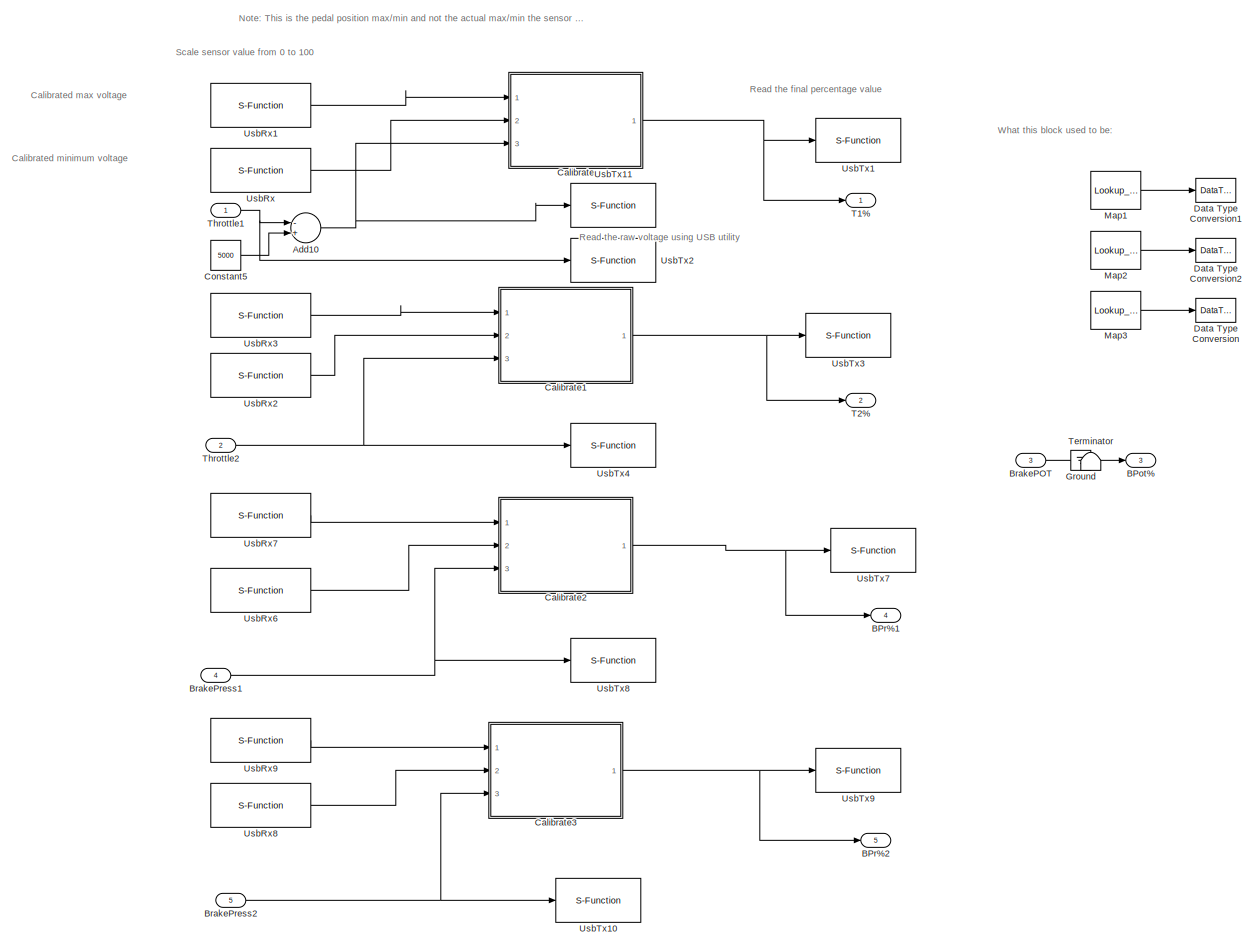
[diagram: MainTask/System under test/Voltage_to_% Conversion - part 1/1, most of the canvas]
BLOCK [SubSystem] MainTask/System under test/Voltage_to_% Conversion
  Ports = [5, 5]
  RequestExecContextInheritance = off
  Variant = off
BLOCK [Sum] MainTask/System under test/Voltage_to_% Conversion/Add10
  InputSameDT = off
  Inputs = -+
  OutDataTypeStr = Inherit: Inherit via internal rule
  Ports = [2, 1]
  SaturateOnIntegerOverflow = off
BLOCK [Outport] MainTask/System under test/Voltage_to_% Conversion/BPot%
  IconDisplay = Port number
  Port = 3
BLOCK [Outport] MainTask/System under test/Voltage_to_% Conversion/BPr%1
  IconDisplay = Port number
  Port = 4
BLOCK [Outport] MainTask/System under test/Voltage_to_% Conversion/BPr%2
  IconDisplay = Port number
  Port = 5
BLOCK [Inport] MainTask/System under test/Voltage_to_% Conversion/BrakePOT
  IconDisplay = Port number
  Port = 3
BLOCK [Inport] MainTask/System under test/Voltage_to_% Conversion/BrakePress1
  IconDisplay = Port number
  Port = 4
BLOCK [Inport] MainTask/System under test/Voltage_to_% Conversion/BrakePress2
  IconDisplay = Port number
  Port = 5
BLOCK [SubSystem] MainTask/System under test/Voltage_to_% Conversion/Calibrate
  Ports = [3, 1]
  RequestExecContextInheritance = off
  Variant = off
BLOCK [Sum] MainTask/System under test/Voltage_to_% Conversion/Calibrate/Add
  InputSameDT = off
  Inputs = +-
  OutDataTypeStr = Inherit: Inherit via internal rule
  Ports = [2, 1]
  SaturateOnIntegerOverflow = off
BLOCK [Sum] MainTask/System under test/Voltage_to_% Conversion/Calibrate/Add1
  InputSameDT = off
  Inputs = -+
  OutDataTypeStr = Inherit: Inherit via internal rule
  Ports = [2, 1]
  SaturateOnIntegerOverflow = off
BLOCK [Constant] MainTask/System under test/Voltage_to_% Conversion/Calibrate/Constant
  OutDataTypeStr = double
  Value = 100
BLOCK [DataTypeConversion] MainTask/System under test/Voltage_to_% Conversion/Calibrate/Data Type Conversion3
  OutDataTypeStr = double
  RndMeth = Floor
  SaturateOnIntegerOverflow = off
BLOCK [DataTypeConversion] MainTask/System under test/Voltage_to_% Conversion/Calibrate/Data Type Conversion4
  OutDataTypeStr = double
  RndMeth = Floor
  SaturateOnIntegerOverflow = off
BLOCK [Product] MainTask/System under test/Voltage_to_% Conversion/Calibrate/Divide
  InputSameDT = off
  Inputs = */*
  OutDataTypeStr = double
  Ports = [3, 1]
  RndMeth = Floor
  SaturateOnIntegerOverflow = off
BLOCK [MinMax] MainTask/System under test/Voltage_to_% Conversion/Calibrate/MinMax
  InputSameDT = off
  Inputs = 2
  OutDataTypeStr = uint16
  Ports = [2, 1]
  SaturateOnIntegerOverflow = off
BLOCK [MinMax] MainTask/System under test/Voltage_to_% Conversion/Calibrate/MinMax5
  Function = max
  InputSameDT = off
  Inputs = 2
  OutDataTypeStr = uint16
  Ports = [2, 1]
  SaturateOnIntegerOverflow = off
BLOCK [Inport] MainTask/System under test/Voltage_to_% Conversion/Calibrate/PedalMax
  IconDisplay = Port number
BLOCK [Inport] MainTask/System under test/Voltage_to_% Conversion/Calibrate/PedalMin
  IconDisplay = Port number
  Port = 2
BLOCK [Outport] MainTask/System under test/Voltage_to_% Conversion/Calibrate/Percentage
  IconDisplay = Port number
BLOCK [Inport] MainTask/System under test/Voltage_to_% Conversion/Calibrate/Voltage
  IconDisplay = Port number
  Port = 3
BLOCK [SubSystem] MainTask/System under test/Voltage_to_% Conversion/Calibrate1
  Ports = [3, 1]
  RequestExecContextInheritance = off
  Variant = off
BLOCK [Sum] MainTask/System under test/Voltage_to_% Conversion/Calibrate1/Add
  InputSameDT = off
  Inputs = +-
  OutDataTypeStr = Inherit: Inherit via internal rule
  Ports = [2, 1]
  SaturateOnIntegerOverflow = off
BLOCK [Sum] MainTask/System under test/Voltage_to_% Conversion/Calibrate1/Add1
  InputSameDT = off
  Inputs = -+
  OutDataTypeStr = Inherit: Inherit via internal rule
  Ports = [2, 1]
  SaturateOnIntegerOverflow = off
BLOCK [Constant] MainTask/System under test/Voltage_to_% Conversion/Calibrate1/Constant
  OutDataTypeStr = double
  Value = 100
BLOCK [DataTypeConversion] MainTask/System under test/Voltage_to_% Conversion/Calibrate1/Data Type Conversion3
  OutDataTypeStr = double
  RndMeth = Floor
  SaturateOnIntegerOverflow = off
BLOCK [DataTypeConversion] MainTask/System under test/Voltage_to_% Conversion/Calibrate1/Data Type Conversion4
  OutDataTypeStr = double
  RndMeth = Floor
  SaturateOnIntegerOverflow = off
BLOCK [Product] MainTask/System under test/Voltage_to_% Conversion/Calibrate1/Divide
  InputSameDT = off
  Inputs = */*
  OutDataTypeStr = double
  Ports = [3, 1]
  RndMeth = Floor
  SaturateOnIntegerOverflow = off
BLOCK [MinMax] MainTask/System under test/Voltage_to_% Conversion/Calibrate1/MinMax
  InputSameDT = off
  Inputs = 2
  OutDataTypeStr = uint16
  Ports = [2, 1]
  SaturateOnIntegerOverflow = off
BLOCK [MinMax] MainTask/System under test/Voltage_to_% Conversion/Calibrate1/MinMax5
  Function = max
  InputSameDT = off
  Inputs = 2
  OutDataTypeStr = uint16
  Ports = [2, 1]
  SaturateOnIntegerOverflow = off
BLOCK [Inport] MainTask/System under test/Voltage_to_% Conversion/Calibrate1/PedalMax
  IconDisplay = Port number
BLOCK [Inport] MainTask/System under test/Voltage_to_% Conversion/Calibrate1/PedalMin
  IconDisplay = Port number
  Port = 2
BLOCK [Outport] MainTask/System under test/Voltage_to_% Conversion/Calibrate1/Percentage
  IconDisplay = Port number
BLOCK [Inport] MainTask/System under test/Voltage_to_% Conversion/Calibrate1/Voltage
  IconDisplay = Port number
  Port = 3
BLOCK [SubSystem] MainTask/System under test/Voltage_to_% Conversion/Calibrate2
  Ports = [3, 1]
  RequestExecContextInheritance = off
  Variant = off
BLOCK [Sum] MainTask/System under test/Voltage_to_% Conversion/Calibrate2/Add
  InputSameDT = off
  Inputs = +-
  OutDataTypeStr = Inherit: Inherit via internal rule
  Ports = [2, 1]
  SaturateOnIntegerOverflow = off
BLOCK [Sum] MainTask/System under test/Voltage_to_% Conversion/Calibrate2/Add1
  InputSameDT = off
  Inputs = -+
  OutDataTypeStr = Inherit: Inherit via internal rule
  Ports = [2, 1]
  SaturateOnIntegerOverflow = off
BLOCK [Constant] MainTask/System under test/Voltage_to_% Conversion/Calibrate2/Constant
  OutDataTypeStr = double
  Value = 100
BLOCK [DataTypeConversion] MainTask/System under test/Voltage_to_% Conversion/Calibrate2/Data Type Conversion3
  OutDataTypeStr = double
  RndMeth = Floor
  SaturateOnIntegerOverflow = off
BLOCK [DataTypeConversion] MainTask/System under test/Voltage_to_% Conversion/Calibrate2/Data Type Conversion4
  OutDataTypeStr = double
  RndMeth = Floor
  SaturateOnIntegerOverflow = off
BLOCK [Product] MainTask/System under test/Voltage_to_% Conversion/Calibrate2/Divide
  InputSameDT = off
  Inputs = */*
  OutDataTypeStr = double
  Ports = [3, 1]
  RndMeth = Floor
  SaturateOnIntegerOverflow = off
BLOCK [MinMax] MainTask/System under test/Voltage_to_% Conversion/Calibrate2/MinMax
  InputSameDT = off
  Inputs = 2
  OutDataTypeStr = uint16
  Ports = [2, 1]
  SaturateOnIntegerOverflow = off
BLOCK [MinMax] MainTask/System under test/Voltage_to_% Conversion/Calibrate2/MinMax5
  Function = max
  InputSameDT = off
  Inputs = 2
  OutDataTypeStr = uint16
  Ports = [2, 1]
  SaturateOnIntegerOverflow = off
BLOCK [Inport] MainTask/System under test/Voltage_to_% Conversion/Calibrate2/PedalMax
  IconDisplay = Port number
BLOCK [Inport] MainTask/System under test/Voltage_to_% Conversion/Calibrate2/PedalMin
  IconDisplay = Port number
  Port = 2
BLOCK [Outport] MainTask/System under test/Voltage_to_% Conversion/Calibrate2/Percentage
  IconDisplay = Port number
BLOCK [Inport] MainTask/System under test/Voltage_to_% Conversion/Calibrate2/Voltage
  IconDisplay = Port number
  Port = 3
BLOCK [SubSystem] MainTask/System under test/Voltage_to_% Conversion/Calibrate3
  Ports = [3, 1]
  RequestExecContextInheritance = off
  Variant = off
BLOCK [Sum] MainTask/System under test/Voltage_to_% Conversion/Calibrate3/Add
  InputSameDT = off
  Inputs = +-
  OutDataTypeStr = Inherit: Inherit via internal rule
  Ports = [2, 1]
  SaturateOnIntegerOverflow = off
BLOCK [Sum] MainTask/System under test/Voltage_to_% Conversion/Calibrate3/Add1
  InputSameDT = off
  Inputs = -+
  OutDataTypeStr = Inherit: Inherit via internal rule
  Ports = [2, 1]
  SaturateOnIntegerOverflow = off
BLOCK [Constant] MainTask/System under test/Voltage_to_% Conversion/Calibrate3/Constant
  OutDataTypeStr = double
  Value = 100
BLOCK [DataTypeConversion] MainTask/System under test/Voltage_to_% Conversion/Calibrate3/Data Type Conversion3
  OutDataTypeStr = double
  RndMeth = Floor
  SaturateOnIntegerOverflow = off
BLOCK [DataTypeConversion] MainTask/System under test/Voltage_to_% Conversion/Calibrate3/Data Type Conversion4
  OutDataTypeStr = double
  RndMeth = Floor
  SaturateOnIntegerOverflow = off
BLOCK [Product] MainTask/System under test/Voltage_to_% Conversion/Calibrate3/Divide
  InputSameDT = off
  Inputs = */*
  OutDataTypeStr = double
  Ports = [3, 1]
  RndMeth = Floor
  SaturateOnIntegerOverflow = off
BLOCK [MinMax] MainTask/System under test/Voltage_to_% Conversion/Calibrate3/MinMax
  InputSameDT = off
  Inputs = 2
  OutDataTypeStr = uint16
  Ports = [2, 1]
  SaturateOnIntegerOverflow = off
BLOCK [MinMax] MainTask/System under test/Voltage_to_% Conversion/Calibrate3/MinMax5
  Function = max
  InputSameDT = off
  Inputs = 2
  OutDataTypeStr = uint16
  Ports = [2, 1]
  SaturateOnIntegerOverflow = off
BLOCK [Inport] MainTask/System under test/Voltage_to_% Conversion/Calibrate3/PedalMax
  IconDisplay = Port number
BLOCK [Inport] MainTask/System under test/Voltage_to_% Conversion/Calibrate3/PedalMin
  IconDisplay = Port number
  Port = 2
BLOCK [Outport] MainTask/System under test/Voltage_to_% Conversion/Calibrate3/Percentage
  IconDisplay = Port number
BLOCK [Inport] MainTask/System under test/Voltage_to_% Conversion/Calibrate3/Voltage
  IconDisplay = Port number
  Port = 3
BLOCK [Constant] MainTask/System under test/Voltage_to_% Conversion/Constant5
  OutDataTypeStr = uint16
  Value = 5000
BLOCK [DataTypeConversion] MainTask/System under test/Voltage_to_% Conversion/Data Type Conversion
  Commented = on
  OutDataTypeStr = uint8
  RndMeth = Floor
  SaturateOnIntegerOverflow = off
BLOCK [DataTypeConversion] MainTask/System under test/Voltage_to_% Conversion/Data Type Conversion1
  Commented = on
  OutDataTypeStr = uint8
  RndMeth = Floor
  SaturateOnIntegerOverflow = off
BLOCK [DataTypeConversion] MainTask/System under test/Voltage_to_% Conversion/Data Type Conversion2
  Commented = on
  OutDataTypeStr = uint8
  RndMeth = Floor
  SaturateOnIntegerOverflow = off
BLOCK [Ground] MainTask/System under test/Voltage_to_% Conversion/Ground
BLOCK [Lookup_n-D] MainTask/System under test/Voltage_to_% Conversion/Map1
  BreakpointsForDimension1 = [0000,5000]
  Commented = on
  ExtrapMethod = Clip
  InternalRulePriority = Speed
  NumberOfTableDimensions = 1
  Ports = [1, 1]
  RndMeth = Simplest
  Table = [0,100]
  UseLastTableValue = on
BLOCK [Lookup_n-D] MainTask/System under test/Voltage_to_% Conversion/Map2
  BreakpointsForDimension1 = [0000,5000]
  Commented = on
  ExtrapMethod = Clip
  InternalRulePriority = Speed
  NumberOfTableDimensions = 1
  Ports = [1, 1]
  RndMeth = Simplest
  Table = [0,100]
  UseLastTableValue = on
BLOCK [Lookup_n-D] MainTask/System under test/Voltage_to_% Conversion/Map3
  BreakpointsForDimension1 = [2800,5600]
  Commented = on
  ExtrapMethod = Clip
  InternalRulePriority = Speed
  NumberOfTableDimensions = 1
  Ports = [1, 1]
  RndMeth = Simplest
  Table = [0,100]
  UseLastTableValue = on
BLOCK [Outport] MainTask/System under test/Voltage_to_% Conversion/T1%
  IconDisplay = Port number
BLOCK [Outport] MainTask/System under test/Voltage_to_% Conversion/T2%
  IconDisplay = Port number
  Port = 2
BLOCK [Terminator] MainTask/System under test/Voltage_to_% Conversion/Terminator
BLOCK [Inport] MainTask/System under test/Voltage_to_% Conversion/Throttle1
  IconDisplay = Port number
BLOCK [Inport] MainTask/System under test/Voltage_to_% Conversion/Throttle2
  IconDisplay = Port number
  Port = 2
BLOCK [S-Function] MainTask/System under test/Voltage_to_% Conversion/UsbRx
  EnableBusSupport = off
  FunctionName = NsiUsb_Rx
  OpenFcn = NsiUsb_Rx_OpenFcn();
  Parameters = signame,sigtype,resolution,offset,unite,value,is_trigger
  Ports = [0, 1]
  SFcnIsStateOwnerBlock = off
  SFunctionDeploymentMode = off
BLOCK [S-Function] MainTask/System under test/Voltage_to_% Conversion/UsbRx1
  EnableBusSupport = off
  FunctionName = NsiUsb_Rx
  OpenFcn = NsiUsb_Rx_OpenFcn();
  Parameters = signame,sigtype,resolution,offset,unite,value,is_trigger
  Ports = [0, 1]
  SFcnIsStateOwnerBlock = off
  SFunctionDeploymentMode = off
BLOCK [S-Function] MainTask/System under test/Voltage_to_% Conversion/UsbRx2
  EnableBusSupport = off
  FunctionName = NsiUsb_Rx
  OpenFcn = NsiUsb_Rx_OpenFcn();
  Parameters = signame,sigtype,resolution,offset,unite,value,is_trigger
  Ports = [0, 1]
  SFcnIsStateOwnerBlock = off
  SFunctionDeploymentMode = off
BLOCK [S-Function] MainTask/System under test/Voltage_to_% Conversion/UsbRx3
  EnableBusSupport = off
  FunctionName = NsiUsb_Rx
  OpenFcn = NsiUsb_Rx_OpenFcn();
  Parameters = signame,sigtype,resolution,offset,unite,value,is_trigger
  Ports = [0, 1]
  SFcnIsStateOwnerBlock = off
  SFunctionDeploymentMode = off
BLOCK [S-Function] MainTask/System under test/Voltage_to_% Conversion/UsbRx6
  EnableBusSupport = off
  FunctionName = NsiUsb_Rx
  OpenFcn = NsiUsb_Rx_OpenFcn();
  Parameters = signame,sigtype,resolution,offset,unite,value,is_trigger
  Ports = [0, 1]
  SFcnIsStateOwnerBlock = off
  SFunctionDeploymentMode = off
BLOCK [S-Function] MainTask/System under test/Voltage_to_% Conversion/UsbRx7
  EnableBusSupport = off
  FunctionName = NsiUsb_Rx
  OpenFcn = NsiUsb_Rx_OpenFcn();
  Parameters = signame,sigtype,resolution,offset,unite,value,is_trigger
  Ports = [0, 1]
  SFcnIsStateOwnerBlock = off
  SFunctionDeploymentMode = off
BLOCK [S-Function] MainTask/System under test/Voltage_to_% Conversion/UsbRx8
  EnableBusSupport = off
  FunctionName = NsiUsb_Rx
  OpenFcn = NsiUsb_Rx_OpenFcn();
  Parameters = signame,sigtype,resolution,offset,unite,value,is_trigger
  Ports = [0, 1]
  SFcnIsStateOwnerBlock = off
  SFunctionDeploymentMode = off
BLOCK [S-Function] MainTask/System under test/Voltage_to_% Conversion/UsbRx9
  EnableBusSupport = off
  FunctionName = NsiUsb_Rx
  OpenFcn = NsiUsb_Rx_OpenFcn();
  Parameters = signame,sigtype,resolution,offset,unite,value,is_trigger
  Ports = [0, 1]
  SFcnIsStateOwnerBlock = off
  SFunctionDeploymentMode = off
BLOCK [S-Function] MainTask/System under test/Voltage_to_% Conversion/UsbTx1
  EnableBusSupport = off
  FunctionName = NsiUsb_Tx
  OpenFcn = NsiUsb_Tx_OpenFcn();
  Parameters = signame,resolution,offset,unite
  Ports = [1]
  SFcnIsStateOwnerBlock = off
  SFunctionDeploymentMode = off
BLOCK [S-Function] MainTask/System under test/Voltage_to_% Conversion/UsbTx10
  EnableBusSupport = off
  FunctionName = NsiUsb_Tx
  OpenFcn = NsiUsb_Tx_OpenFcn();
  Parameters = signame,resolution,offset,unite
  Ports = [1]
  SFcnIsStateOwnerBlock = off
  SFunctionDeploymentMode = off
BLOCK [S-Function] MainTask/System under test/Voltage_to_% Conversion/UsbTx11
  EnableBusSupport = off
  FunctionName = NsiUsb_Tx
  OpenFcn = NsiUsb_Tx_OpenFcn();
  Parameters = signame,resolution,offset,unite
  Ports = [1]
  SFcnIsStateOwnerBlock = off
  SFunctionDeploymentMode = off
BLOCK [S-Function] MainTask/System under test/Voltage_to_% Conversion/UsbTx2
  EnableBusSupport = off
  FunctionName = NsiUsb_Tx
  OpenFcn = NsiUsb_Tx_OpenFcn();
  Parameters = signame,resolution,offset,unite
  Ports = [1]
  SFcnIsStateOwnerBlock = off
  SFunctionDeploymentMode = off
BLOCK [S-Function] MainTask/System under test/Voltage_to_% Conversion/UsbTx3
  EnableBusSupport = off
  FunctionName = NsiUsb_Tx
  OpenFcn = NsiUsb_Tx_OpenFcn();
  Parameters = signame,resolution,offset,unite
  Ports = [1]
  SFcnIsStateOwnerBlock = off
  SFunctionDeploymentMode = off
BLOCK [S-Function] MainTask/System under test/Voltage_to_% Conversion/UsbTx4
  EnableBusSupport = off
  FunctionName = NsiUsb_Tx
  OpenFcn = NsiUsb_Tx_OpenFcn();
  Parameters = signame,resolution,offset,unite
  Ports = [1]
  SFcnIsStateOwnerBlock = off
  SFunctionDeploymentMode = off
BLOCK [S-Function] MainTask/System under test/Voltage_to_% Conversion/UsbTx7
  EnableBusSupport = off
  FunctionName = NsiUsb_Tx
  OpenFcn = NsiUsb_Tx_OpenFcn();
  Parameters = signame,resolution,offset,unite
  Ports = [1]
  SFcnIsStateOwnerBlock = off
  SFunctionDeploymentMode = off
BLOCK [S-Function] MainTask/System under test/Voltage_to_% Conversion/UsbTx8
  EnableBusSupport = off
  FunctionName = NsiUsb_Tx
  OpenFcn = NsiUsb_Tx_OpenFcn();
  Parameters = signame,resolution,offset,unite
  Ports = [1]
  SFcnIsStateOwnerBlock = off
  SFunctionDeploymentMode = off
BLOCK [S-Function] MainTask/System under test/Voltage_to_% Conversion/UsbTx9
  EnableBusSupport = off
  FunctionName = NsiUsb_Tx
  OpenFcn = NsiUsb_Tx_OpenFcn();
  Parameters = signame,resolution,offset,unite
  Ports = [1]
  SFcnIsStateOwnerBlock = off
  SFunctionDeploymentMode = off
BLOCK [S-Function] MainTask/Task
  EnableBusSupport = off
  FunctionName = NsiSys_TaskREF
  OpenFcn = NsiSys_Task_OpenFcn();
  Parameters = task_initialised,task_periodic, task_sampletime,task_name,task_event,task_offset
  Ports = []
  SFcnIsStateOwnerBlock = off
  SFunctionDeploymentMode = off
ANNOTATION MainTask/Comms_And_Data_Acquisition_Layer: Action: Put the hardwired inputs and CAN inputs on to a bus
ANNOTATION MainTask/Comms_And_Data_Acquisition_Layer: Action: Read CAN messages from CAN1 bus and generate output
ANNOTATION MainTask/Comms_And_Data_Acquisition_Layer: Action: Read hardware digital and anologue inputs
ANNOTATION MainTask/Comms_And_Data_Acquisition_Layer: CAN_Signals
ANNOTATION MainTask/Comms_And_Data_Acquisition_Layer: Hardware I/O
ANNOTATION MainTask/Comms_And_Data_Acquisition_Layer/BMS_CAN: Overall Functionality: Read CAN messages related to BMS
ANNOTATION MainTask/Comms_And_Data_Acquisition_Layer/Hardwired_Inputs_2019: Overall Functionality: Get inputs from the physical input pins
ANNOTATION MainTask/Comms_And_Data_Acquisition_Layer/MCU_CAN: Overall Functionality: Read CAN messages related to motor control unit (MCU)
ANNOTATION MainTask/Comms_And_Data_Acquisition_Layer/SENSOR_CAN: Overall Functionality: Read CAN messages related to vehicle sensors
ANNOTATION MainTask/Comms_And_Data_Output_Layer: Cooling
ANNOTATION MainTask/Comms_And_Data_Output_Layer: ECU Safety
ANNOTATION MainTask/Comms_And_Data_Output_Layer: HV Controls
ANNOTATION MainTask/Comms_And_Data_Output_Layer: Inverter CAN
ANNOTATION MainTask/Comms_And_Data_Output_Layer: System Under Test Outputs
ANNOTATION MainTask/Comms_And_Data_Output_Layer: User I/O
ANNOTATION MainTask/System under test: Overall Functionality: - All pedal box sensor values are checked to ensure that they are in the correct voltage range - These sensors are then scaled to be between 0-100 % - APPS Implausibility is performed - Brake pedal implausibility is performed - Thresholds for when brake is considered active, and throttle is considered active are set here (used for RTD and Brake Light activation respectively)
ANNOTATION MainTask/System under test: Throttle 20 and Brake 10 are arbitrary values (not rules)
ANNOTATION MainTask/System under test/APPS and BP Plausibility: If accelerator and brake pedal are pressed at the same time, then wait for both pedals to return to zero before sending further torque requests
ANNOTATION MainTask/System under test/APPS and BP Plausibility: If brake is above 20% AND accelerator is above 25%, then hold the error on until throttle is less than 5%
ANNOTATION MainTask/System under test/APPS and BP Plausibility: Invert the logic so that if error is active, throttle gets multiplied by zero
ANNOTATION MainTask/System under test/APPS and BP Plausibility: Note: This is needed by rules - including specified percentages
ANNOTATION MainTask/System under test/APPS and BP Plausibility: This block outputs the previous state from previous sample
ANNOTATION MainTask/System under test/APPS and BP Plausibility: function [Throttle_Percentage, APPS_BP_Implausibility] = APPS_BP_Plausibility_Check(Throttle_In, Brake_In, APPS_BP_Implausibility_Prv) %Plausibility check on both throttle and brake %Implausible case: when both brake and throttle applied if (Brake_In >=20 && Throttle_In > 25) APPS_BP_Implausibility = true; Throttle_Percentage =uint8(0); %Implausible case: when brake pressed but throttle still not ...<+409ch>
ANNOTATION MainTask/System under test/APPS_Implausibility_Check: 15% is defined in rules
ANNOTATION MainTask/System under test/APPS_Implausibility_Check: Check to see if Throttle2 is within the range of Throttle1 +/- 15%
ANNOTATION MainTask/System under test/APPS_Implausibility_Check: If the error happens continuosly for 100ms then the throttle output should be set to zero
ANNOTATION MainTask/System under test/APPS_Implausibility_Check: Note: 100ms is measured using 10 delays. As task runs every 10ms, 10 delays will result in a 100ms delay
ANNOTATION MainTask/System under test/APPS_Implausibility_Check: Remember to change to "min" when we have both sensors installed
ANNOTATION MainTask/System under test/APPS_Implausibility_Check: Send to CAN bus
ANNOTATION MainTask/System under test/APPS_Implausibility_Check: This sets torque to zero if APPS implausibility happens
ANNOTATION MainTask/System under test/APPS_Implausibility_Check: function [APPS_Implausbility, Throttle_Percentage] = APPS_Implausibility_Check(Pedal_Sensor_Fail, Throttle1_Per, Throttle2_Per) %Limit generation for comparison Upper_Limit = Throttle1_Per+15; Lower_Limit = Throttle1_Per-15; %Passes one throttle if in range and no pedal sensor errors if ((Lower_Limit <= Throttle2_Per) && (Throttle2_Per <= Upper_Limit)&& Pedal_Sensor_Fail == 0) Throttle_Percentage ...<+201ch>
ANNOTATION MainTask/System under test/BPPS_Implausibility_Check: If the error happens continuosly for 100ms then the throttle output should be set to zero
ANNOTATION MainTask/System under test/BPPS_Implausibility_Check: Note: 100ms is measured using 10 delays. As task runs every 10ms, 10 delays will result in a 100ms delay
ANNOTATION MainTask/System under test/BPPS_Implausibility_Check: Note: Not needed for rules
ANNOTATION MainTask/System under test/BPPS_Implausibility_Check: Output to CAN
ANNOTATION MainTask/System under test/BPPS_Implausibility_Check: function [APPS_Implausbility, Throttle_Percentage] = APPS_Implausibility_Check(Pedal_Sensor_Fail, Throttle1_Per, Throttle2_Per) %Limit generation for comparison Upper_Limit = Throttle1_Per+15; Lower_Limit = Throttle1_Per-15; %Passes one throttle if in range and no pedal sensor errors if ((Lower_Limit <= Throttle2_Per) && (Throttle2_Per <= Upper_Limit)&& Pedal_Sensor_Fail == 0) Throttle_Percentage ...<+201ch>
ANNOTATION MainTask/System under test/Sensor Plausibility: Check if the readings from the sensors are outside expected range e.g. If a 5V sensor is giving a reading of 12V Note: Not needed for rules
ANNOTATION MainTask/System under test/Voltage_to_% Conversion: Calibrated max voltage
ANNOTATION MainTask/System under test/Voltage_to_% Conversion: Calibrated minimum voltage
ANNOTATION MainTask/System under test/Voltage_to_% Conversion: Note: This is the pedal position max/min and not the actual max/min the sensor is capable of generating
ANNOTATION MainTask/System under test/Voltage_to_% Conversion: Read the final percentage value
ANNOTATION MainTask/System under test/Voltage_to_% Conversion: Read the raw voltage using USB utility
ANNOTATION MainTask/System under test/Voltage_to_% Conversion: Scale sensor value from 0 to 100
ANNOTATION MainTask/System under test/Voltage_to_% Conversion: What this block used to be:
LINE MainTask/Comms_And_Data_Acquisition_Layer/BMS_CAN/Bus Creator:1 -> MainTask/Comms_And_Data_Acquisition_Layer/BMS_CAN/Out1:1
NET MainTask/Comms_And_Data_Acquisition_Layer/BMS_CAN/CanRx6:1 -> MainTask/Comms_And_Data_Acquisition_Layer/BMS_CAN/Bus Creator:1, MainTask/Comms_And_Data_Acquisition_Layer/BMS_CAN/UsbTx1:1
NET MainTask/Comms_And_Data_Acquisition_Layer/BMS_CAN/CanRx6:2 -> MainTask/Comms_And_Data_Acquisition_Layer/BMS_CAN/Bus Creator:2, MainTask/Comms_And_Data_Acquisition_Layer/BMS_CAN/UsbTx2:1
NET MainTask/Comms_And_Data_Acquisition_Layer/BMS_CAN/CanRx6:3 -> MainTask/Comms_And_Data_Acquisition_Layer/BMS_CAN/Bus Creator:3, MainTask/Comms_And_Data_Acquisition_Layer/BMS_CAN/UsbTx3:1
NET MainTask/Comms_And_Data_Acquisition_Layer/BMS_CAN/CanRx6:4 -> MainTask/Comms_And_Data_Acquisition_Layer/BMS_CAN/Bus Creator:4, MainTask/Comms_And_Data_Acquisition_Layer/BMS_CAN/UsbTx4:1
NET MainTask/Comms_And_Data_Acquisition_Layer/BMS_CAN/CanRx7:1 -> MainTask/Comms_And_Data_Acquisition_Layer/BMS_CAN/Bus Creator:5, MainTask/Comms_And_Data_Acquisition_Layer/BMS_CAN/UsbTx5:1
NET MainTask/Comms_And_Data_Acquisition_Layer/BMS_CAN/CanRx7:2 -> MainTask/Comms_And_Data_Acquisition_Layer/BMS_CAN/Bus Creator:6, MainTask/Comms_And_Data_Acquisition_Layer/BMS_CAN/UsbTx6:1
NET MainTask/Comms_And_Data_Acquisition_Layer/BMS_CAN/CanRx7:3 -> MainTask/Comms_And_Data_Acquisition_Layer/BMS_CAN/Bus Creator:7, MainTask/Comms_And_Data_Acquisition_Layer/BMS_CAN/UsbTx7:1
NET MainTask/Comms_And_Data_Acquisition_Layer/BMS_CAN/CanRx7:4 -> MainTask/Comms_And_Data_Acquisition_Layer/BMS_CAN/Bus Creator:8, MainTask/Comms_And_Data_Acquisition_Layer/BMS_CAN/UsbTx8:1
NET MainTask/Comms_And_Data_Acquisition_Layer/BMS_CAN/CanRx7:5 -> MainTask/Comms_And_Data_Acquisition_Layer/BMS_CAN/Bus Creator:9, MainTask/Comms_And_Data_Acquisition_Layer/BMS_CAN/UsbTx9:1
LINE MainTask/Comms_And_Data_Acquisition_Layer/BMS_CAN:1 -> MainTask/Comms_And_Data_Acquisition_Layer/Bus Creator:3
LINE MainTask/Comms_And_Data_Acquisition_Layer/Bus Creator:1 -> MainTask/Comms_And_Data_Acquisition_Layer/Out1:1
NET MainTask/Comms_And_Data_Acquisition_Layer/Hardwired_Inputs_2019/AIRs/DigitalInput5:1 -> MainTask/Comms_And_Data_Acquisition_Layer/Hardwired_Inputs_2019/AIRs/AIRHigh:1, MainTask/Comms_And_Data_Acquisition_Layer/Hardwired_Inputs_2019/AIRs/UsbTx2:1
NET MainTask/Comms_And_Data_Acquisition_Layer/Hardwired_Inputs_2019/AIRs/DigitalInput:1 -> MainTask/Comms_And_Data_Acquisition_Layer/Hardwired_Inputs_2019/AIRs/AIRLow:1, MainTask/Comms_And_Data_Acquisition_Layer/Hardwired_Inputs_2019/AIRs/UsbTx1:1
NET MainTask/Comms_And_Data_Acquisition_Layer/Hardwired_Inputs_2019/AIRs:1 -> MainTask/Comms_And_Data_Acquisition_Layer/Hardwired_Inputs_2019/Bus Creator:8, MainTask/Comms_And_Data_Acquisition_Layer/Hardwired_Inputs_2019/UsbTx14:1
NET MainTask/Comms_And_Data_Acquisition_Layer/Hardwired_Inputs_2019/AIRs:2 -> MainTask/Comms_And_Data_Acquisition_Layer/Hardwired_Inputs_2019/Bus Creator:9, MainTask/Comms_And_Data_Acquisition_Layer/Hardwired_Inputs_2019/UsbTx15:1
LINE MainTask/Comms_And_Data_Acquisition_Layer/Hardwired_Inputs_2019/BMS/DigitalInput1:1 -> MainTask/Comms_And_Data_Acquisition_Layer/Hardwired_Inputs_2019/BMS/BMS_Multi2:1
LINE MainTask/Comms_And_Data_Acquisition_Layer/Hardwired_Inputs_2019/BMS/DigitalInput2:1 -> MainTask/Comms_And_Data_Acquisition_Layer/Hardwired_Inputs_2019/BMS/BMS_ChargeEnable:1
LINE MainTask/Comms_And_Data_Acquisition_Layer/Hardwired_Inputs_2019/BMS/DigitalInput6:1 -> MainTask/Comms_And_Data_Acquisition_Layer/Hardwired_Inputs_2019/BMS/BMS_Multi1:1
NET MainTask/Comms_And_Data_Acquisition_Layer/Hardwired_Inputs_2019/BMS:1 -> MainTask/Comms_And_Data_Acquisition_Layer/Hardwired_Inputs_2019/Bus Creator:10, MainTask/Comms_And_Data_Acquisition_Layer/Hardwired_Inputs_2019/UsbTx16:1
NET MainTask/Comms_And_Data_Acquisition_Layer/Hardwired_Inputs_2019/BMS:2 -> MainTask/Comms_And_Data_Acquisition_Layer/Hardwired_Inputs_2019/Bus Creator:11, MainTask/Comms_And_Data_Acquisition_Layer/Hardwired_Inputs_2019/UsbTx17:1
NET MainTask/Comms_And_Data_Acquisition_Layer/Hardwired_Inputs_2019/BMS:3 -> MainTask/Comms_And_Data_Acquisition_Layer/Hardwired_Inputs_2019/Bus Creator:12, MainTask/Comms_And_Data_Acquisition_Layer/Hardwired_Inputs_2019/UsbTx18:1
LINE MainTask/Comms_And_Data_Acquisition_Layer/Hardwired_Inputs_2019/Bus Creator:1 -> MainTask/Comms_And_Data_Acquisition_Layer/Hardwired_Inputs_2019/Out1:1
LINE MainTask/Comms_And_Data_Acquisition_Layer/Hardwired_Inputs_2019/Buttons/DigitalInput1:1 -> MainTask/Comms_And_Data_Acquisition_Layer/Hardwired_Inputs_2019/Buttons/btnRTD_Input:1
LINE MainTask/Comms_And_Data_Acquisition_Layer/Hardwired_Inputs_2019/Buttons/DigitalInput2:1 -> MainTask/Comms_And_Data_Acquisition_Layer/Hardwired_Inputs_2019/Buttons/btnZ_Input:1
LINE MainTask/Comms_And_Data_Acquisition_Layer/Hardwired_Inputs_2019/Buttons/DigitalInput3:1 -> MainTask/Comms_And_Data_Acquisition_Layer/Hardwired_Inputs_2019/Buttons/btnX_Input:1
LINE MainTask/Comms_And_Data_Acquisition_Layer/Hardwired_Inputs_2019/Buttons/DigitalInput4:1 -> MainTask/Comms_And_Data_Acquisition_Layer/Hardwired_Inputs_2019/Buttons/btnY_Input:1
LINE MainTask/Comms_And_Data_Acquisition_Layer/Hardwired_Inputs_2019/Buttons/DigitalInput5:1 -> MainTask/Comms_And_Data_Acquisition_Layer/Hardwired_Inputs_2019/Buttons/btnPumpFan_Input:1
LINE MainTask/Comms_And_Data_Acquisition_Layer/Hardwired_Inputs_2019/Buttons/DigitalInput6:1 -> MainTask/Comms_And_Data_Acquisition_Layer/Hardwired_Inputs_2019/Buttons/btnAccyFan_Input:1
NET MainTask/Comms_And_Data_Acquisition_Layer/Hardwired_Inputs_2019/Buttons:1 -> MainTask/Comms_And_Data_Acquisition_Layer/Hardwired_Inputs_2019/Bus Creator:13, MainTask/Comms_And_Data_Acquisition_Layer/Hardwired_Inputs_2019/UsbTx6:1
NET MainTask/Comms_And_Data_Acquisition_Layer/Hardwired_Inputs_2019/Buttons:2 -> MainTask/Comms_And_Data_Acquisition_Layer/Hardwired_Inputs_2019/Bus Creator:14, MainTask/Comms_And_Data_Acquisition_Layer/Hardwired_Inputs_2019/UsbTx7:1
NET MainTask/Comms_And_Data_Acquisition_Layer/Hardwired_Inputs_2019/Buttons:3 -> MainTask/Comms_And_Data_Acquisition_Layer/Hardwired_Inputs_2019/Bus Creator:15, MainTask/Comms_And_Data_Acquisition_Layer/Hardwired_Inputs_2019/UsbTx8:1
NET MainTask/Comms_And_Data_Acquisition_Layer/Hardwired_Inputs_2019/Buttons:4 -> MainTask/Comms_And_Data_Acquisition_Layer/Hardwired_Inputs_2019/Bus Creator:16, MainTask/Comms_And_Data_Acquisition_Layer/Hardwired_Inputs_2019/UsbTx9:1
NET MainTask/Comms_And_Data_Acquisition_Layer/Hardwired_Inputs_2019/Buttons:5 -> MainTask/Comms_And_Data_Acquisition_Layer/Hardwired_Inputs_2019/Bus Creator:17, MainTask/Comms_And_Data_Acquisition_Layer/Hardwired_Inputs_2019/UsbTx10:1
NET MainTask/Comms_And_Data_Acquisition_Layer/Hardwired_Inputs_2019/Buttons:6 -> MainTask/Comms_And_Data_Acquisition_Layer/Hardwired_Inputs_2019/Bus Creator:18, MainTask/Comms_And_Data_Acquisition_Layer/Hardwired_Inputs_2019/UsbTx11:1
NET MainTask/Comms_And_Data_Acquisition_Layer/Hardwired_Inputs_2019/FrequentialInput1:1 -> MainTask/Comms_And_Data_Acquisition_Layer/Hardwired_Inputs_2019/Bus Creator:7, MainTask/Comms_And_Data_Acquisition_Layer/Hardwired_Inputs_2019/UsbTx13:1
LINE MainTask/Comms_And_Data_Acquisition_Layer/Hardwired_Inputs_2019/Pedal_Box/AnalogInput1:1 -> MainTask/Comms_And_Data_Acquisition_Layer/Hardwired_Inputs_2019/Pedal_Box/Throttle1_Voltage:1
LINE MainTask/Comms_And_Data_Acquisition_Layer/Hardwired_Inputs_2019/Pedal_Box/AnalogInput2:1 -> MainTask/Comms_And_Data_Acquisition_Layer/Hardwired_Inputs_2019/Pedal_Box/Brake1_Pressure:1
LINE MainTask/Comms_And_Data_Acquisition_Layer/Hardwired_Inputs_2019/Pedal_Box/AnalogInput3:1 -> MainTask/Comms_And_Data_Acquisition_Layer/Hardwired_Inputs_2019/Pedal_Box/Brake2_Pressure:1
LINE MainTask/Comms_And_Data_Acquisition_Layer/Hardwired_Inputs_2019/Pedal_Box/AnalogInput6:1 -> MainTask/Comms_And_Data_Acquisition_Layer/Hardwired_Inputs_2019/Pedal_Box/Throttle2_Voltage:1
LINE MainTask/Comms_And_Data_Acquisition_Layer/Hardwired_Inputs_2019/Pedal_Box/AnalogInput7:1 -> MainTask/Comms_And_Data_Acquisition_Layer/Hardwired_Inputs_2019/Pedal_Box/Brake_Voltage:1
NET MainTask/Comms_And_Data_Acquisition_Layer/Hardwired_Inputs_2019/Pedal_Box:1 -> MainTask/Comms_And_Data_Acquisition_Layer/Hardwired_Inputs_2019/Bus Creator:1, MainTask/Comms_And_Data_Acquisition_Layer/Hardwired_Inputs_2019/UsbTx1:1
NET MainTask/Comms_And_Data_Acquisition_Layer/Hardwired_Inputs_2019/Pedal_Box:2 -> MainTask/Comms_And_Data_Acquisition_Layer/Hardwired_Inputs_2019/Bus Creator:2, MainTask/Comms_And_Data_Acquisition_Layer/Hardwired_Inputs_2019/UsbTx2:1
NET MainTask/Comms_And_Data_Acquisition_Layer/Hardwired_Inputs_2019/Pedal_Box:3 -> MainTask/Comms_And_Data_Acquisition_Layer/Hardwired_Inputs_2019/Bus Creator:3, MainTask/Comms_And_Data_Acquisition_Layer/Hardwired_Inputs_2019/UsbTx3:1
NET MainTask/Comms_And_Data_Acquisition_Layer/Hardwired_Inputs_2019/Pedal_Box:4 -> MainTask/Comms_And_Data_Acquisition_Layer/Hardwired_Inputs_2019/Bus Creator:4, MainTask/Comms_And_Data_Acquisition_Layer/Hardwired_Inputs_2019/UsbTx4:1
NET MainTask/Comms_And_Data_Acquisition_Layer/Hardwired_Inputs_2019/Pedal_Box:5 -> MainTask/Comms_And_Data_Acquisition_Layer/Hardwired_Inputs_2019/Bus Creator:5, MainTask/Comms_And_Data_Acquisition_Layer/Hardwired_Inputs_2019/UsbTx5:1
LINE MainTask/Comms_And_Data_Acquisition_Layer/Hardwired_Inputs_2019/VBat:1 -> MainTask/Comms_And_Data_Acquisition_Layer/Hardwired_Inputs_2019/Voltage_Act:1
NET MainTask/Comms_And_Data_Acquisition_Layer/Hardwired_Inputs_2019/Voltage_Act:1 -> MainTask/Comms_And_Data_Acquisition_Layer/Hardwired_Inputs_2019/Bus Creator:6, MainTask/Comms_And_Data_Acquisition_Layer/Hardwired_Inputs_2019/UsbTx12:1
LINE MainTask/Comms_And_Data_Acquisition_Layer/Hardwired_Inputs_2019:1 -> MainTask/Comms_And_Data_Acquisition_Layer/Bus Creator:1
LINE MainTask/Comms_And_Data_Acquisition_Layer/MCU_CAN/Bus Creator:1 -> MainTask/Comms_And_Data_Acquisition_Layer/MCU_CAN/Out1:1
NET MainTask/Comms_And_Data_Acquisition_Layer/MCU_CAN/CanRx1:1 -> MainTask/Comms_And_Data_Acquisition_Layer/MCU_CAN/Bus Creator:1, MainTask/Comms_And_Data_Acquisition_Layer/MCU_CAN/UsbTx1:1
NET MainTask/Comms_And_Data_Acquisition_Layer/MCU_CAN/CanRx1:2 -> MainTask/Comms_And_Data_Acquisition_Layer/MCU_CAN/Bus Creator:2, MainTask/Comms_And_Data_Acquisition_Layer/MCU_CAN/UsbTx2:1
NET MainTask/Comms_And_Data_Acquisition_Layer/MCU_CAN/CanRx2:1 -> MainTask/Comms_And_Data_Acquisition_Layer/MCU_CAN/Bus Creator:3, MainTask/Comms_And_Data_Acquisition_Layer/MCU_CAN/UsbTx3:1
LINE MainTask/Comms_And_Data_Acquisition_Layer/MCU_CAN/CanRx3:1 -> MainTask/Comms_And_Data_Acquisition_Layer/MCU_CAN/Data Type Conversion:1
NET MainTask/Comms_And_Data_Acquisition_Layer/MCU_CAN/Data Type Conversion:1 -> MainTask/Comms_And_Data_Acquisition_Layer/MCU_CAN/Bus Creator:4, MainTask/Comms_And_Data_Acquisition_Layer/MCU_CAN/UsbTx4:1
LINE MainTask/Comms_And_Data_Acquisition_Layer/MCU_CAN:1 -> MainTask/Comms_And_Data_Acquisition_Layer/Bus Creator:2
LINE MainTask/Comms_And_Data_Acquisition_Layer/SENSOR_CAN/Bus Creator:1 -> MainTask/Comms_And_Data_Acquisition_Layer/SENSOR_CAN/Out1:1
NET MainTask/Comms_And_Data_Acquisition_Layer/SENSOR_CAN/CanRx1:1 -> MainTask/Comms_And_Data_Acquisition_Layer/SENSOR_CAN/Bus Creator:1, MainTask/Comms_And_Data_Acquisition_Layer/SENSOR_CAN/UsbTx1:1
NET MainTask/Comms_And_Data_Acquisition_Layer/SENSOR_CAN/CanRx1:2 -> MainTask/Comms_And_Data_Acquisition_Layer/SENSOR_CAN/Bus Creator:2, MainTask/Comms_And_Data_Acquisition_Layer/SENSOR_CAN/UsbTx2:1
NET MainTask/Comms_And_Data_Acquisition_Layer/SENSOR_CAN/CanRx1:3 -> MainTask/Comms_And_Data_Acquisition_Layer/SENSOR_CAN/Bus Creator:3, MainTask/Comms_And_Data_Acquisition_Layer/SENSOR_CAN/UsbTx3:1
NET MainTask/Comms_And_Data_Acquisition_Layer/SENSOR_CAN/CanRx2:1 -> MainTask/Comms_And_Data_Acquisition_Layer/SENSOR_CAN/Bus Creator:4, MainTask/Comms_And_Data_Acquisition_Layer/SENSOR_CAN/UsbTx4:1
NET MainTask/Comms_And_Data_Acquisition_Layer/SENSOR_CAN/CanRx2:2 -> MainTask/Comms_And_Data_Acquisition_Layer/SENSOR_CAN/Bus Creator:5, MainTask/Comms_And_Data_Acquisition_Layer/SENSOR_CAN/UsbTx5:1
NET MainTask/Comms_And_Data_Acquisition_Layer/SENSOR_CAN/CanRx2:3 -> MainTask/Comms_And_Data_Acquisition_Layer/SENSOR_CAN/Bus Creator:6, MainTask/Comms_And_Data_Acquisition_Layer/SENSOR_CAN/UsbTx6:1
NET MainTask/Comms_And_Data_Acquisition_Layer/SENSOR_CAN/CanRx5:1 -> MainTask/Comms_And_Data_Acquisition_Layer/SENSOR_CAN/Bus Creator:7, MainTask/Comms_And_Data_Acquisition_Layer/SENSOR_CAN/UsbTx7:1
NET MainTask/Comms_And_Data_Acquisition_Layer/SENSOR_CAN/CanRx8:1 -> MainTask/Comms_And_Data_Acquisition_Layer/SENSOR_CAN/Bus Creator:8, MainTask/Comms_And_Data_Acquisition_Layer/SENSOR_CAN/UsbTx8:1
NET MainTask/Comms_And_Data_Acquisition_Layer/SENSOR_CAN/CanRx9:1 -> MainTask/Comms_And_Data_Acquisition_Layer/SENSOR_CAN/Bus Creator:9, MainTask/Comms_And_Data_Acquisition_Layer/SENSOR_CAN/UsbTx9:1
LINE MainTask/Comms_And_Data_Acquisition_Layer/SENSOR_CAN:1 -> MainTask/Comms_And_Data_Acquisition_Layer/Bus Creator:4
LINE MainTask/Comms_And_Data_Acquisition_Layer:1 -> MainTask/System under test:1
LINE MainTask/Comms_And_Data_Output_Layer/Binary Toggle/Constant1:1 -> MainTask/Comms_And_Data_Output_Layer/Binary Toggle/D Flip-Flop:3
LINE MainTask/Comms_And_Data_Output_Layer/Binary Toggle/D Flip-Flop:1 -> MainTask/Comms_And_Data_Output_Layer/Binary Toggle/Out1:1
LINE MainTask/Comms_And_Data_Output_Layer/Binary Toggle/D Flip-Flop:2 -> MainTask/Comms_And_Data_Output_Layer/Binary Toggle/D Flip-Flop:1
LINE MainTask/Comms_And_Data_Output_Layer/Binary Toggle/In1:1 -> MainTask/Comms_And_Data_Output_Layer/Binary Toggle/D Flip-Flop:2
LINE MainTask/Comms_And_Data_Output_Layer/Bus Selector:1 -> MainTask/Comms_And_Data_Output_Layer/UsbTx1:1
LINE MainTask/Comms_And_Data_Output_Layer/Bus Selector:10 -> MainTask/Comms_And_Data_Output_Layer/UsbTx10:1
LINE MainTask/Comms_And_Data_Output_Layer/Bus Selector:11 -> MainTask/Comms_And_Data_Output_Layer/UsbTx11:1
LINE MainTask/Comms_And_Data_Output_Layer/Bus Selector:12 -> MainTask/Comms_And_Data_Output_Layer/UsbTx12:1
LINE MainTask/Comms_And_Data_Output_Layer/Bus Selector:2 -> MainTask/Comms_And_Data_Output_Layer/UsbTx2:1
LINE MainTask/Comms_And_Data_Output_Layer/Bus Selector:3 -> MainTask/Comms_And_Data_Output_Layer/UsbTx3:1
LINE MainTask/Comms_And_Data_Output_Layer/Bus Selector:4 -> MainTask/Comms_And_Data_Output_Layer/UsbTx4:1
LINE MainTask/Comms_And_Data_Output_Layer/Bus Selector:5 -> MainTask/Comms_And_Data_Output_Layer/UsbTx5:1
LINE MainTask/Comms_And_Data_Output_Layer/Bus Selector:6 -> MainTask/Comms_And_Data_Output_Layer/UsbTx6:1
LINE MainTask/Comms_And_Data_Output_Layer/Bus Selector:7 -> MainTask/Comms_And_Data_Output_Layer/UsbTx7:1
LINE MainTask/Comms_And_Data_Output_Layer/Bus Selector:8 -> MainTask/Comms_And_Data_Output_Layer/UsbTx8:1
LINE MainTask/Comms_And_Data_Output_Layer/Bus Selector:9 -> MainTask/Comms_And_Data_Output_Layer/UsbTx9:1
LINE MainTask/Comms_And_Data_Output_Layer/Data Type Conversion10:1 -> MainTask/Comms_And_Data_Output_Layer/CanTx6:1
LINE MainTask/Comms_And_Data_Output_Layer/Data Type Conversion11:1 -> MainTask/Comms_And_Data_Output_Layer/CanTx6:2
LINE MainTask/Comms_And_Data_Output_Layer/Data Type Conversion12:1 -> MainTask/Comms_And_Data_Output_Layer/CanTx7:1
LINE MainTask/Comms_And_Data_Output_Layer/Data Type Conversion13:1 -> MainTask/Comms_And_Data_Output_Layer/CanTx7:2
LINE MainTask/Comms_And_Data_Output_Layer/Data Type Conversion14:1 -> MainTask/Comms_And_Data_Output_Layer/CanTx7:3
LINE MainTask/Comms_And_Data_Output_Layer/Data Type Conversion15:1 -> MainTask/Comms_And_Data_Output_Layer/CanTx5:1
LINE MainTask/Comms_And_Data_Output_Layer/Data Type Conversion16:1 -> MainTask/Comms_And_Data_Output_Layer/CanTx5:2
LINE MainTask/Comms_And_Data_Output_Layer/Data Type Conversion17:1 -> MainTask/Comms_And_Data_Output_Layer/CanTx5:3
LINE MainTask/Comms_And_Data_Output_Layer/Data Type Conversion18:1 -> MainTask/Comms_And_Data_Output_Layer/CanTx8:1
LINE MainTask/Comms_And_Data_Output_Layer/Data Type Conversion19:1 -> MainTask/Comms_And_Data_Output_Layer/CanTx8:2
LINE MainTask/Comms_And_Data_Output_Layer/Data Type Conversion1:1 -> MainTask/Comms_And_Data_Output_Layer/CanTx2:2
LINE MainTask/Comms_And_Data_Output_Layer/Data Type Conversion2:1 -> MainTask/Comms_And_Data_Output_Layer/CanTx3:1
LINE MainTask/Comms_And_Data_Output_Layer/Data Type Conversion3:1 -> MainTask/Comms_And_Data_Output_Layer/CanTx3:2
LINE MainTask/Comms_And_Data_Output_Layer/Data Type Conversion4:1 -> MainTask/Comms_And_Data_Output_Layer/CanTx3:3
LINE MainTask/Comms_And_Data_Output_Layer/Data Type Conversion5:1 -> MainTask/Comms_And_Data_Output_Layer/CanTx1:1
LINE MainTask/Comms_And_Data_Output_Layer/Data Type Conversion6:1 -> MainTask/Comms_And_Data_Output_Layer/CanTx1:2
LINE MainTask/Comms_And_Data_Output_Layer/Data Type Conversion7:1 -> MainTask/Comms_And_Data_Output_Layer/CanTx1:3
LINE MainTask/Comms_And_Data_Output_Layer/Data Type Conversion8:1 -> MainTask/Comms_And_Data_Output_Layer/CanTx4:1
LINE MainTask/Comms_And_Data_Output_Layer/Data Type Conversion9:1 -> MainTask/Comms_And_Data_Output_Layer/CanTx4:2
LINE MainTask/Comms_And_Data_Output_Layer/Data Type Conversion:1 -> MainTask/Comms_And_Data_Output_Layer/CanTx2:1
LINE MainTask/Comms_And_Data_Output_Layer/In2:1 -> MainTask/Comms_And_Data_Output_Layer/Bus Selector:1
LINE MainTask/Comms_And_Data_Output_Layer/UsbRx10:1 -> MainTask/Comms_And_Data_Output_Layer/DigitalOutput1:1
LINE MainTask/Comms_And_Data_Output_Layer/UsbRx11:1 -> MainTask/Comms_And_Data_Output_Layer/DigitalOutput10:1
LINE MainTask/Comms_And_Data_Output_Layer/UsbRx12:1 -> MainTask/Comms_And_Data_Output_Layer/DigitalOutput11:1
LINE MainTask/Comms_And_Data_Output_Layer/UsbRx13:1 -> MainTask/Comms_And_Data_Output_Layer/DigitalOutput12:1
LINE MainTask/Comms_And_Data_Output_Layer/UsbRx14:1 -> MainTask/Comms_And_Data_Output_Layer/Data Type Conversion3:1
LINE MainTask/Comms_And_Data_Output_Layer/UsbRx15:1 -> MainTask/Comms_And_Data_Output_Layer/Data Type Conversion1:1
LINE MainTask/Comms_And_Data_Output_Layer/UsbRx16:1 -> MainTask/Comms_And_Data_Output_Layer/Data Type Conversion:1
LINE MainTask/Comms_And_Data_Output_Layer/UsbRx17:1 -> MainTask/Comms_And_Data_Output_Layer/Data Type Conversion2:1
LINE MainTask/Comms_And_Data_Output_Layer/UsbRx18:1 -> MainTask/Comms_And_Data_Output_Layer/Data Type Conversion4:1
LINE MainTask/Comms_And_Data_Output_Layer/UsbRx19:1 -> MainTask/Comms_And_Data_Output_Layer/Data Type Conversion5:1
LINE MainTask/Comms_And_Data_Output_Layer/UsbRx1:1 -> MainTask/Comms_And_Data_Output_Layer/AnalogOutput2:1
LINE MainTask/Comms_And_Data_Output_Layer/UsbRx20:1 -> MainTask/Comms_And_Data_Output_Layer/Data Type Conversion6:1
LINE MainTask/Comms_And_Data_Output_Layer/UsbRx21:1 -> MainTask/Comms_And_Data_Output_Layer/Data Type Conversion7:1
LINE MainTask/Comms_And_Data_Output_Layer/UsbRx22:1 -> MainTask/Comms_And_Data_Output_Layer/Data Type Conversion8:1
LINE MainTask/Comms_And_Data_Output_Layer/UsbRx23:1 -> MainTask/Comms_And_Data_Output_Layer/Data Type Conversion9:1
LINE MainTask/Comms_And_Data_Output_Layer/UsbRx24:1 -> MainTask/Comms_And_Data_Output_Layer/Data Type Conversion13:1
LINE MainTask/Comms_And_Data_Output_Layer/UsbRx25:1 -> MainTask/Comms_And_Data_Output_Layer/Data Type Conversion11:1
LINE MainTask/Comms_And_Data_Output_Layer/UsbRx26:1 -> MainTask/Comms_And_Data_Output_Layer/Data Type Conversion10:1
LINE MainTask/Comms_And_Data_Output_Layer/UsbRx27:1 -> MainTask/Comms_And_Data_Output_Layer/Data Type Conversion12:1
LINE MainTask/Comms_And_Data_Output_Layer/UsbRx28:1 -> MainTask/Comms_And_Data_Output_Layer/Data Type Conversion14:1
LINE MainTask/Comms_And_Data_Output_Layer/UsbRx29:1 -> MainTask/Comms_And_Data_Output_Layer/Data Type Conversion15:1
LINE MainTask/Comms_And_Data_Output_Layer/UsbRx2:1 -> MainTask/Comms_And_Data_Output_Layer/AnalogOutput1:1
LINE MainTask/Comms_And_Data_Output_Layer/UsbRx30:1 -> MainTask/Comms_And_Data_Output_Layer/Data Type Conversion16:1
LINE MainTask/Comms_And_Data_Output_Layer/UsbRx31:1 -> MainTask/Comms_And_Data_Output_Layer/Data Type Conversion17:1
LINE MainTask/Comms_And_Data_Output_Layer/UsbRx32:1 -> MainTask/Comms_And_Data_Output_Layer/Data Type Conversion18:1
LINE MainTask/Comms_And_Data_Output_Layer/UsbRx33:1 -> MainTask/Comms_And_Data_Output_Layer/Data Type Conversion19:1
LINE MainTask/Comms_And_Data_Output_Layer/UsbRx3:1 -> MainTask/Comms_And_Data_Output_Layer/DigitalOutput3:1
LINE MainTask/Comms_And_Data_Output_Layer/UsbRx4:1 -> MainTask/Comms_And_Data_Output_Layer/DigitalOutput2:1
LINE MainTask/Comms_And_Data_Output_Layer/UsbRx5:1 -> MainTask/Comms_And_Data_Output_Layer/DigitalOutput5:1
LINE MainTask/Comms_And_Data_Output_Layer/UsbRx6:1 -> MainTask/Comms_And_Data_Output_Layer/DigitalOutput7:1
LINE MainTask/Comms_And_Data_Output_Layer/UsbRx7:1 -> MainTask/Comms_And_Data_Output_Layer/DigitalOutput4:1
LINE MainTask/Comms_And_Data_Output_Layer/UsbRx8:1 -> MainTask/Comms_And_Data_Output_Layer/DigitalOutput6:1
LINE MainTask/Comms_And_Data_Output_Layer/UsbRx9:1 -> MainTask/Comms_And_Data_Output_Layer/DigitalOutput9:1
LINE MainTask/Comms_And_Data_Output_Layer/UsbRx:1 -> MainTask/Comms_And_Data_Output_Layer/DigitalOutput8:1
LINE MainTask/System under test/APPS and BP Plausibility/Brake_%:1 -> MainTask/System under test/APPS and BP Plausibility/Relational Operator:1
LINE MainTask/System under test/APPS and BP Plausibility/Constant1:1 -> MainTask/System under test/APPS and BP Plausibility/Relational Operator1:2
LINE MainTask/System under test/APPS and BP Plausibility/Constant2:1 -> MainTask/System under test/APPS and BP Plausibility/Relational Operator2:2
LINE MainTask/System under test/APPS and BP Plausibility/Constant:1 -> MainTask/System under test/APPS and BP Plausibility/Relational Operator:2
LINE MainTask/System under test/APPS and BP Plausibility/Logical Operator1:1 -> MainTask/System under test/APPS and BP Plausibility/Logical Operator2:2
NET MainTask/System under test/APPS and BP Plausibility/Logical Operator2:1 -> MainTask/System under test/APPS and BP Plausibility/APPS_BP_Implausibility:1, MainTask/System under test/APPS and BP Plausibility/Logical Operator3:1, MainTask/System under test/APPS and BP Plausibility/prv_APPS_BP1:1
LINE MainTask/System under test/APPS and BP Plausibility/Logical Operator3:1 -> MainTask/System under test/APPS and BP Plausibility/Product:1
LINE MainTask/System under test/APPS and BP Plausibility/Logical Operator:1 -> MainTask/System under test/APPS and BP Plausibility/Logical Operator2:1
LINE MainTask/System under test/APPS and BP Plausibility/Product:1 -> MainTask/System under test/APPS and BP Plausibility/Throttle_%:1
LINE MainTask/System under test/APPS and BP Plausibility/Relational Operator1:1 -> MainTask/System under test/APPS and BP Plausibility/Logical Operator:2
LINE MainTask/System under test/APPS and BP Plausibility/Relational Operator2:1 -> MainTask/System under test/APPS and BP Plausibility/Logical Operator1:1
LINE MainTask/System under test/APPS and BP Plausibility/Relational Operator:1 -> MainTask/System under test/APPS and BP Plausibility/Logical Operator:1
NET MainTask/System under test/APPS and BP Plausibility/Throttle_In:1 -> MainTask/System under test/APPS and BP Plausibility/Product:2, MainTask/System under test/APPS and BP Plausibility/Relational Operator1:1, MainTask/System under test/APPS and BP Plausibility/Relational Operator2:1
LINE MainTask/System under test/APPS and BP Plausibility/prv_APPS_BP1:1 -> MainTask/System under test/APPS and BP Plausibility/Logical Operator1:2
NET MainTask/System under test/APPS and BP Plausibility:1 -> MainTask/System under test/Bus Creator:5, MainTask/System under test/Relational Operator1:1
LINE MainTask/System under test/APPS and BP Plausibility:2 -> MainTask/System under test/Bus Creator:7
NET MainTask/System under test/APPS_Implausibility_Check/Constant:1 -> MainTask/System under test/APPS_Implausibility_Check/LowerLinit:1, MainTask/System under test/APPS_Implausibility_Check/UpperLinit:2
LINE MainTask/System under test/APPS_Implausibility_Check/Data Type Conversion:1 -> MainTask/System under test/APPS_Implausibility_Check/Product:2
LINE MainTask/System under test/APPS_Implausibility_Check/Ground:1 -> MainTask/System under test/APPS_Implausibility_Check/Product:1
LINE MainTask/System under test/APPS_Implausibility_Check/Logical Operator3:1 -> MainTask/System under test/APPS_Implausibility_Check/Data Type Conversion:1
LINE MainTask/System under test/APPS_Implausibility_Check/Logical Operator:1 -> MainTask/System under test/APPS_Implausibility_Check/Tapped Delay:1
LINE MainTask/System under test/APPS_Implausibility_Check/LowerLinit:1 -> MainTask/System under test/APPS_Implausibility_Check/Relational Operator1:2
LINE MainTask/System under test/APPS_Implausibility_Check/MinMax:1 -> MainTask/System under test/APPS_Implausibility_Check/Throttle_%:1
NET MainTask/System under test/APPS_Implausibility_Check/Product of Elements:1 -> MainTask/System under test/APPS_Implausibility_Check/APPS_Implausibility:1, MainTask/System under test/APPS_Implausibility_Check/Logical Operator3:1
LINE MainTask/System under test/APPS_Implausibility_Check/Product:1 -> MainTask/System under test/APPS_Implausibility_Check/Terminator:1
LINE MainTask/System under test/APPS_Implausibility_Check/Relational Operator1:1 -> MainTask/System under test/APPS_Implausibility_Check/Logical Operator:2
LINE MainTask/System under test/APPS_Implausibility_Check/Relational Operator:1 -> MainTask/System under test/APPS_Implausibility_Check/Logical Operator:1
LINE MainTask/System under test/APPS_Implausibility_Check/Tapped Delay:1 -> MainTask/System under test/APPS_Implausibility_Check/Product of Elements:1
NET MainTask/System under test/APPS_Implausibility_Check/Throttle1_Per:1 -> MainTask/System under test/APPS_Implausibility_Check/LowerLinit:2, MainTask/System under test/APPS_Implausibility_Check/MinMax:1, MainTask/System under test/APPS_Implausibility_Check/UpperLinit:1
NET MainTask/System under test/APPS_Implausibility_Check/Throttle2_Per:1 -> MainTask/System under test/APPS_Implausibility_Check/MinMax:2, MainTask/System under test/APPS_Implausibility_Check/Relational Operator1:1, MainTask/System under test/APPS_Implausibility_Check/Relational Operator:1
LINE MainTask/System under test/APPS_Implausibility_Check/UpperLinit:1 -> MainTask/System under test/APPS_Implausibility_Check/Relational Operator:2
LINE MainTask/System under test/APPS_Implausibility_Check:1 -> MainTask/System under test/Bus Creator:4
NET MainTask/System under test/APPS_Implausibility_Check:2 -> MainTask/System under test/APPS and BP Plausibility:1, MainTask/System under test/UsbTx10:1
NET MainTask/System under test/BPPS_Implausibility_Check/Brake1_Per:1 -> MainTask/System under test/BPPS_Implausibility_Check/LowerLinit:2, MainTask/System under test/BPPS_Implausibility_Check/MinMax:1, MainTask/System under test/BPPS_Implausibility_Check/UpperLinit:1
NET MainTask/System under test/BPPS_Implausibility_Check/Brake2_Per:1 -> MainTask/System under test/BPPS_Implausibility_Check/MinMax:2, MainTask/System under test/BPPS_Implausibility_Check/Relational Operator1:1, MainTask/System under test/BPPS_Implausibility_Check/Relational Operator:1
NET MainTask/System under test/BPPS_Implausibility_Check/Constant:1 -> MainTask/System under test/BPPS_Implausibility_Check/LowerLinit:1, MainTask/System under test/BPPS_Implausibility_Check/UpperLinit:2
LINE MainTask/System under test/BPPS_Implausibility_Check/Logical Operator:1 -> MainTask/System under test/BPPS_Implausibility_Check/Tapped Delay:1
LINE MainTask/System under test/BPPS_Implausibility_Check/LowerLinit:1 -> MainTask/System under test/BPPS_Implausibility_Check/Relational Operator1:2
LINE MainTask/System under test/BPPS_Implausibility_Check/MinMax:1 -> MainTask/System under test/BPPS_Implausibility_Check/Brake_%:1
LINE MainTask/System under test/BPPS_Implausibility_Check/Product of Elements:1 -> MainTask/System under test/BPPS_Implausibility_Check/BPPS_Implausibility:1
LINE MainTask/System under test/BPPS_Implausibility_Check/Relational Operator1:1 -> MainTask/System under test/BPPS_Implausibility_Check/Logical Operator:2
LINE MainTask/System under test/BPPS_Implausibility_Check/Relational Operator:1 -> MainTask/System under test/BPPS_Implausibility_Check/Logical Operator:1
LINE MainTask/System under test/BPPS_Implausibility_Check/Tapped Delay:1 -> MainTask/System under test/BPPS_Implausibility_Check/Product of Elements:1
LINE MainTask/System under test/BPPS_Implausibility_Check/UpperLinit:1 -> MainTask/System under test/BPPS_Implausibility_Check/Relational Operator:2
NET MainTask/System under test/BPPS_Implausibility_Check:1 -> MainTask/System under test/APPS and BP Plausibility:2, MainTask/System under test/Bus Creator:9, MainTask/System under test/Relational Operator:1
LINE MainTask/System under test/BPPS_Implausibility_Check:2 -> MainTask/System under test/Bus Creator:10
LINE MainTask/System under test/Bus Creator:1 -> MainTask/System under test/Out1:1
LINE MainTask/System under test/Bus Selector:1 -> MainTask/System under test/Sensor Plausibility:1
LINE MainTask/System under test/Bus Selector:2 -> MainTask/System under test/Sensor Plausibility:2
LINE MainTask/System under test/Bus Selector:3 -> MainTask/System under test/Sensor Plausibility:3
LINE MainTask/System under test/Bus Selector:4 -> MainTask/System under test/Sensor Plausibility:4
LINE MainTask/System under test/Bus Selector:5 -> MainTask/System under test/Sensor Plausibility:5
LINE MainTask/System under test/In1:1 -> MainTask/System under test/Bus Selector:1
LINE MainTask/System under test/Memory read1:1 -> MainTask/System under test/Relational Operator:2
LINE MainTask/System under test/Memory read:1 -> MainTask/System under test/Relational Operator1:2
LINE MainTask/System under test/Relational Operator1:1 -> MainTask/System under test/Bus Creator:6
LINE MainTask/System under test/Relational Operator:1 -> MainTask/System under test/Bus Creator:8
LINE MainTask/System under test/Sensor Plausibility/<Brake_Voltage>1:1 -> MainTask/System under test/Sensor Plausibility/Sensor_Diag:4
LINE MainTask/System under test/Sensor Plausibility/<Brake_Voltage>2:1 -> MainTask/System under test/Sensor Plausibility/Sensor_Diag:5
LINE MainTask/System under test/Sensor Plausibility/<Brake_Voltage>:1 -> MainTask/System under test/Sensor Plausibility/Sensor_Diag:3
LINE MainTask/System under test/Sensor Plausibility/<Throttle1_Voltage>:1 -> MainTask/System under test/Sensor Plausibility/Sensor_Diag:1
LINE MainTask/System under test/Sensor Plausibility/<Throttle2_Voltage>:1 -> MainTask/System under test/Sensor Plausibility/Sensor_Diag:2
LINE MainTask/System under test/Sensor Plausibility/Sensor_Diag:1 -> MainTask/System under test/Sensor Plausibility/Pedal_Sensor_Fail:1
LINE MainTask/System under test/Sensor Plausibility/Sensor_Diag:2 -> MainTask/System under test/Sensor Plausibility/TV1_Out:1
LINE MainTask/System under test/Sensor Plausibility/Sensor_Diag:3 -> MainTask/System under test/Sensor Plausibility/TV2_Out:1
LINE MainTask/System under test/Sensor Plausibility/Sensor_Diag:4 -> MainTask/System under test/Sensor Plausibility/BVPot_Out:1
LINE MainTask/System under test/Sensor Plausibility/Sensor_Diag:5 -> MainTask/System under test/Sensor Plausibility/BV1_Out:1
LINE MainTask/System under test/Sensor Plausibility/Sensor_Diag:6 -> MainTask/System under test/Sensor Plausibility/BV2_Out:1
LINE MainTask/System under test/Sensor Plausibility:1 -> MainTask/System under test/Bus Creator:1
NET MainTask/System under test/Sensor Plausibility:2 -> MainTask/System under test/UsbTx1:1, MainTask/System under test/Voltage_to_% Conversion:1
NET MainTask/System under test/Sensor Plausibility:3 -> MainTask/System under test/UsbTx2:1, MainTask/System under test/Voltage_to_% Conversion:2
NET MainTask/System under test/Sensor Plausibility:4 -> MainTask/System under test/UsbTx3:1, MainTask/System under test/Voltage_to_% Conversion:3
NET MainTask/System under test/Sensor Plausibility:5 -> MainTask/System under test/UsbTx4:1, MainTask/System under test/Voltage_to_% Conversion:4
NET MainTask/System under test/Sensor Plausibility:6 -> MainTask/System under test/UsbTx5:1, MainTask/System under test/Voltage_to_% Conversion:5
NET MainTask/System under test/Voltage_to_% Conversion/Add10:1 -> MainTask/System under test/Voltage_to_% Conversion/Calibrate:3, MainTask/System under test/Voltage_to_% Conversion/UsbTx11:1
LINE MainTask/System under test/Voltage_to_% Conversion/BrakePOT:1 -> MainTask/System under test/Voltage_to_% Conversion/Terminator:1
NET MainTask/System under test/Voltage_to_% Conversion/BrakePress1:1 -> MainTask/System under test/Voltage_to_% Conversion/Calibrate2:3, MainTask/System under test/Voltage_to_% Conversion/UsbTx8:1
NET MainTask/System under test/Voltage_to_% Conversion/BrakePress2:1 -> MainTask/System under test/Voltage_to_% Conversion/Calibrate3:3, MainTask/System under test/Voltage_to_% Conversion/UsbTx10:1
LINE MainTask/System under test/Voltage_to_% Conversion/Calibrate/Add1:1 -> MainTask/System under test/Voltage_to_% Conversion/Calibrate/Data Type Conversion4:1
LINE MainTask/System under test/Voltage_to_% Conversion/Calibrate/Add:1 -> MainTask/System under test/Voltage_to_% Conversion/Calibrate/Data Type Conversion3:1
NET MainTask/System under test/Voltage_to_% Conversion/Calibrate/Constant:1 -> MainTask/System under test/Voltage_to_% Conversion/Calibrate/Divide:1, MainTask/System under test/Voltage_to_% Conversion/Calibrate/MinMax:1
LINE MainTask/System under test/Voltage_to_% Conversion/Calibrate/Data Type Conversion3:1 -> MainTask/System under test/Voltage_to_% Conversion/Calibrate/Divide:2
LINE MainTask/System under test/Voltage_to_% Conversion/Calibrate/Data Type Conversion4:1 -> MainTask/System under test/Voltage_to_% Conversion/Calibrate/Divide:3
LINE MainTask/System under test/Voltage_to_% Conversion/Calibrate/Divide:1 -> MainTask/System under test/Voltage_to_% Conversion/Calibrate/MinMax:2
LINE MainTask/System under test/Voltage_to_% Conversion/Calibrate/MinMax5:1 -> MainTask/System under test/Voltage_to_% Conversion/Calibrate/Add1:2
LINE MainTask/System under test/Voltage_to_% Conversion/Calibrate/MinMax:1 -> MainTask/System under test/Voltage_to_% Conversion/Calibrate/Percentage:1
LINE MainTask/System under test/Voltage_to_% Conversion/Calibrate/PedalMax:1 -> MainTask/System under test/Voltage_to_% Conversion/Calibrate/Add:1
NET MainTask/System under test/Voltage_to_% Conversion/Calibrate/PedalMin:1 -> MainTask/System under test/Voltage_to_% Conversion/Calibrate/Add1:1, MainTask/System under test/Voltage_to_% Conversion/Calibrate/Add:2, MainTask/System under test/Voltage_to_% Conversion/Calibrate/MinMax5:1
LINE MainTask/System under test/Voltage_to_% Conversion/Calibrate/Voltage:1 -> MainTask/System under test/Voltage_to_% Conversion/Calibrate/MinMax5:2
LINE MainTask/System under test/Voltage_to_% Conversion/Calibrate1/Add1:1 -> MainTask/System under test/Voltage_to_% Conversion/Calibrate1/Data Type Conversion4:1
LINE MainTask/System under test/Voltage_to_% Conversion/Calibrate1/Add:1 -> MainTask/System under test/Voltage_to_% Conversion/Calibrate1/Data Type Conversion3:1
NET MainTask/System under test/Voltage_to_% Conversion/Calibrate1/Constant:1 -> MainTask/System under test/Voltage_to_% Conversion/Calibrate1/Divide:1, MainTask/System under test/Voltage_to_% Conversion/Calibrate1/MinMax:1
LINE MainTask/System under test/Voltage_to_% Conversion/Calibrate1/Data Type Conversion3:1 -> MainTask/System under test/Voltage_to_% Conversion/Calibrate1/Divide:2
LINE MainTask/System under test/Voltage_to_% Conversion/Calibrate1/Data Type Conversion4:1 -> MainTask/System under test/Voltage_to_% Conversion/Calibrate1/Divide:3
LINE MainTask/System under test/Voltage_to_% Conversion/Calibrate1/Divide:1 -> MainTask/System under test/Voltage_to_% Conversion/Calibrate1/MinMax:2
LINE MainTask/System under test/Voltage_to_% Conversion/Calibrate1/MinMax5:1 -> MainTask/System under test/Voltage_to_% Conversion/Calibrate1/Add1:2
LINE MainTask/System under test/Voltage_to_% Conversion/Calibrate1/MinMax:1 -> MainTask/System under test/Voltage_to_% Conversion/Calibrate1/Percentage:1
LINE MainTask/System under test/Voltage_to_% Conversion/Calibrate1/PedalMax:1 -> MainTask/System under test/Voltage_to_% Conversion/Calibrate1/Add:1
NET MainTask/System under test/Voltage_to_% Conversion/Calibrate1/PedalMin:1 -> MainTask/System under test/Voltage_to_% Conversion/Calibrate1/Add1:1, MainTask/System under test/Voltage_to_% Conversion/Calibrate1/Add:2, MainTask/System under test/Voltage_to_% Conversion/Calibrate1/MinMax5:1
LINE MainTask/System under test/Voltage_to_% Conversion/Calibrate1/Voltage:1 -> MainTask/System under test/Voltage_to_% Conversion/Calibrate1/MinMax5:2
NET MainTask/System under test/Voltage_to_% Conversion/Calibrate1:1 -> MainTask/System under test/Voltage_to_% Conversion/T2%:1, MainTask/System under test/Voltage_to_% Conversion/UsbTx3:1
LINE MainTask/System under test/Voltage_to_% Conversion/Calibrate2/Add1:1 -> MainTask/System under test/Voltage_to_% Conversion/Calibrate2/Data Type Conversion4:1
LINE MainTask/System under test/Voltage_to_% Conversion/Calibrate2/Add:1 -> MainTask/System under test/Voltage_to_% Conversion/Calibrate2/Data Type Conversion3:1
NET MainTask/System under test/Voltage_to_% Conversion/Calibrate2/Constant:1 -> MainTask/System under test/Voltage_to_% Conversion/Calibrate2/Divide:1, MainTask/System under test/Voltage_to_% Conversion/Calibrate2/MinMax:1
LINE MainTask/System under test/Voltage_to_% Conversion/Calibrate2/Data Type Conversion3:1 -> MainTask/System under test/Voltage_to_% Conversion/Calibrate2/Divide:2
LINE MainTask/System under test/Voltage_to_% Conversion/Calibrate2/Data Type Conversion4:1 -> MainTask/System under test/Voltage_to_% Conversion/Calibrate2/Divide:3
LINE MainTask/System under test/Voltage_to_% Conversion/Calibrate2/Divide:1 -> MainTask/System under test/Voltage_to_% Conversion/Calibrate2/MinMax:2
LINE MainTask/System under test/Voltage_to_% Conversion/Calibrate2/MinMax5:1 -> MainTask/System under test/Voltage_to_% Conversion/Calibrate2/Add1:2
LINE MainTask/System under test/Voltage_to_% Conversion/Calibrate2/MinMax:1 -> MainTask/System under test/Voltage_to_% Conversion/Calibrate2/Percentage:1
LINE MainTask/System under test/Voltage_to_% Conversion/Calibrate2/PedalMax:1 -> MainTask/System under test/Voltage_to_% Conversion/Calibrate2/Add:1
NET MainTask/System under test/Voltage_to_% Conversion/Calibrate2/PedalMin:1 -> MainTask/System under test/Voltage_to_% Conversion/Calibrate2/Add1:1, MainTask/System under test/Voltage_to_% Conversion/Calibrate2/Add:2, MainTask/System under test/Voltage_to_% Conversion/Calibrate2/MinMax5:1
LINE MainTask/System under test/Voltage_to_% Conversion/Calibrate2/Voltage:1 -> MainTask/System under test/Voltage_to_% Conversion/Calibrate2/MinMax5:2
NET MainTask/System under test/Voltage_to_% Conversion/Calibrate2:1 -> MainTask/System under test/Voltage_to_% Conversion/BPr%1:1, MainTask/System under test/Voltage_to_% Conversion/UsbTx7:1
LINE MainTask/System under test/Voltage_to_% Conversion/Calibrate3/Add1:1 -> MainTask/System under test/Voltage_to_% Conversion/Calibrate3/Data Type Conversion4:1
LINE MainTask/System under test/Voltage_to_% Conversion/Calibrate3/Add:1 -> MainTask/System under test/Voltage_to_% Conversion/Calibrate3/Data Type Conversion3:1
NET MainTask/System under test/Voltage_to_% Conversion/Calibrate3/Constant:1 -> MainTask/System under test/Voltage_to_% Conversion/Calibrate3/Divide:1, MainTask/System under test/Voltage_to_% Conversion/Calibrate3/MinMax:1
LINE MainTask/System under test/Voltage_to_% Conversion/Calibrate3/Data Type Conversion3:1 -> MainTask/System under test/Voltage_to_% Conversion/Calibrate3/Divide:2
LINE MainTask/System under test/Voltage_to_% Conversion/Calibrate3/Data Type Conversion4:1 -> MainTask/System under test/Voltage_to_% Conversion/Calibrate3/Divide:3
LINE MainTask/System under test/Voltage_to_% Conversion/Calibrate3/Divide:1 -> MainTask/System under test/Voltage_to_% Conversion/Calibrate3/MinMax:2
LINE MainTask/System under test/Voltage_to_% Conversion/Calibrate3/MinMax5:1 -> MainTask/System under test/Voltage_to_% Conversion/Calibrate3/Add1:2
LINE MainTask/System under test/Voltage_to_% Conversion/Calibrate3/MinMax:1 -> MainTask/System under test/Voltage_to_% Conversion/Calibrate3/Percentage:1
LINE MainTask/System under test/Voltage_to_% Conversion/Calibrate3/PedalMax:1 -> MainTask/System under test/Voltage_to_% Conversion/Calibrate3/Add:1
NET MainTask/System under test/Voltage_to_% Conversion/Calibrate3/PedalMin:1 -> MainTask/System under test/Voltage_to_% Conversion/Calibrate3/Add1:1, MainTask/System under test/Voltage_to_% Conversion/Calibrate3/Add:2, MainTask/System under test/Voltage_to_% Conversion/Calibrate3/MinMax5:1
LINE MainTask/System under test/Voltage_to_% Conversion/Calibrate3/Voltage:1 -> MainTask/System under test/Voltage_to_% Conversion/Calibrate3/MinMax5:2
NET MainTask/System under test/Voltage_to_% Conversion/Calibrate3:1 -> MainTask/System under test/Voltage_to_% Conversion/BPr%2:1, MainTask/System under test/Voltage_to_% Conversion/UsbTx9:1
NET MainTask/System under test/Voltage_to_% Conversion/Calibrate:1 -> MainTask/System under test/Voltage_to_% Conversion/T1%:1, MainTask/System under test/Voltage_to_% Conversion/UsbTx1:1
LINE MainTask/System under test/Voltage_to_% Conversion/Constant5:1 -> MainTask/System under test/Voltage_to_% Conversion/Add10:2
LINE MainTask/System under test/Voltage_to_% Conversion/Ground:1 -> MainTask/System under test/Voltage_to_% Conversion/BPot%:1
LINE MainTask/System under test/Voltage_to_% Conversion/Map1:1 -> MainTask/System under test/Voltage_to_% Conversion/Data Type Conversion1:1
LINE MainTask/System under test/Voltage_to_% Conversion/Map2:1 -> MainTask/System under test/Voltage_to_% Conversion/Data Type Conversion2:1
LINE MainTask/System under test/Voltage_to_% Conversion/Map3:1 -> MainTask/System under test/Voltage_to_% Conversion/Data Type Conversion:1
NET MainTask/System under test/Voltage_to_% Conversion/Throttle1:1 -> MainTask/System under test/Voltage_to_% Conversion/Add10:1, MainTask/System under test/Voltage_to_% Conversion/UsbTx2:1
NET MainTask/System under test/Voltage_to_% Conversion/Throttle2:1 -> MainTask/System under test/Voltage_to_% Conversion/Calibrate1:3, MainTask/System under test/Voltage_to_% Conversion/UsbTx4:1
LINE MainTask/System under test/Voltage_to_% Conversion/UsbRx1:1 -> MainTask/System under test/Voltage_to_% Conversion/Calibrate:1
LINE MainTask/System under test/Voltage_to_% Conversion/UsbRx2:1 -> MainTask/System under test/Voltage_to_% Conversion/Calibrate1:2
LINE MainTask/System under test/Voltage_to_% Conversion/UsbRx3:1 -> MainTask/System under test/Voltage_to_% Conversion/Calibrate1:1
LINE MainTask/System under test/Voltage_to_% Conversion/UsbRx6:1 -> MainTask/System under test/Voltage_to_% Conversion/Calibrate2:2
LINE MainTask/System under test/Voltage_to_% Conversion/UsbRx7:1 -> MainTask/System under test/Voltage_to_% Conversion/Calibrate2:1
LINE MainTask/System under test/Voltage_to_% Conversion/UsbRx8:1 -> MainTask/System under test/Voltage_to_% Conversion/Calibrate3:2
LINE MainTask/System under test/Voltage_to_% Conversion/UsbRx9:1 -> MainTask/System under test/Voltage_to_% Conversion/Calibrate3:1
LINE MainTask/System under test/Voltage_to_% Conversion/UsbRx:1 -> MainTask/System under test/Voltage_to_% Conversion/Calibrate:2
NET MainTask/System under test/Voltage_to_% Conversion:1 -> MainTask/System under test/APPS_Implausibility_Check:1, MainTask/System under test/Bus Creator:2, MainTask/System under test/UsbTx8:1
NET MainTask/System under test/Voltage_to_% Conversion:2 -> MainTask/System under test/APPS_Implausibility_Check:2, MainTask/System under test/Bus Creator:3, MainTask/System under test/UsbTx7:1
LINE MainTask/System under test/Voltage_to_% Conversion:3 -> MainTask/System under test/Terminator:1
NET MainTask/System under test/Voltage_to_% Conversion:4 -> MainTask/System under test/BPPS_Implausibility_Check:1, MainTask/System under test/Bus Creator:11, MainTask/System under test/UsbTx9:1
NET MainTask/System under test/Voltage_to_% Conversion:5 -> MainTask/System under test/BPPS_Implausibility_Check:2, MainTask/System under test/Bus Creator:12, MainTask/System under test/UsbTx6:1
LINE MainTask/System under test:1 -> MainTask/Comms_And_Data_Output_Layer:1
note: NET lines group one-source signal fan-out (src -> all destinations, sorted); 1:1 wires keep LINE
CHART MainTask/System under test/Sensor Plausibility/Sensor_Diag states=1 transitions=1
  STATE_LABEL 'eML_blk_kernel()'
  STATE_LABEL 'SCRIPT:\nfunction [Pedal_Sensor_Fail,TV1_Out,TV2_Out,BVPot_Out, BV1_Out, BV2_Out ] = Sensor_Diagnostics(TV_1,TV_2,BV_POT , BV_1, BV_2)\n%Checks whether the throttle sensors are in their calibrated range\n\n%Initialisation of throttle outputs, default low \nTV1_Out=uint16(0);\nTV2_Out=uint16(0);\nBVPot_Out=uint16(0);\nBV1_Out=uint16(0);\nBV2_Out=uint16(0);\n\nPedal_Sensor_Fail = uint8(0);\n\nif (TV_1>5000 || TV...<+790ch>'
